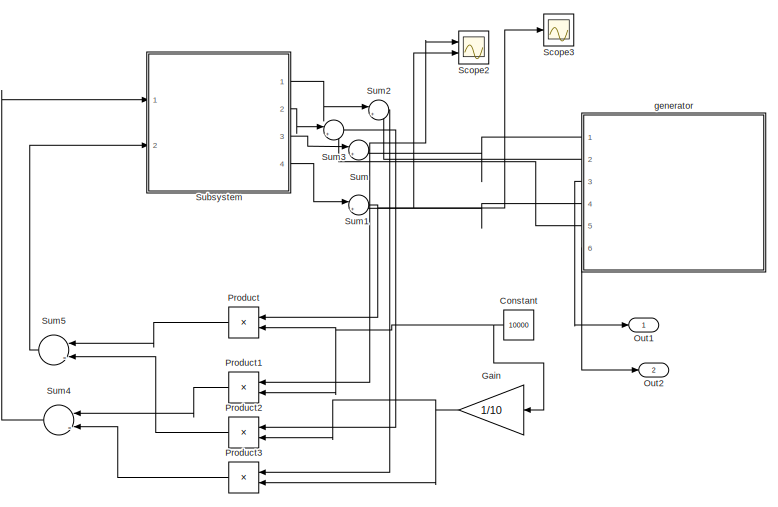
[diagram: root canvas - part 1/3, top left region]
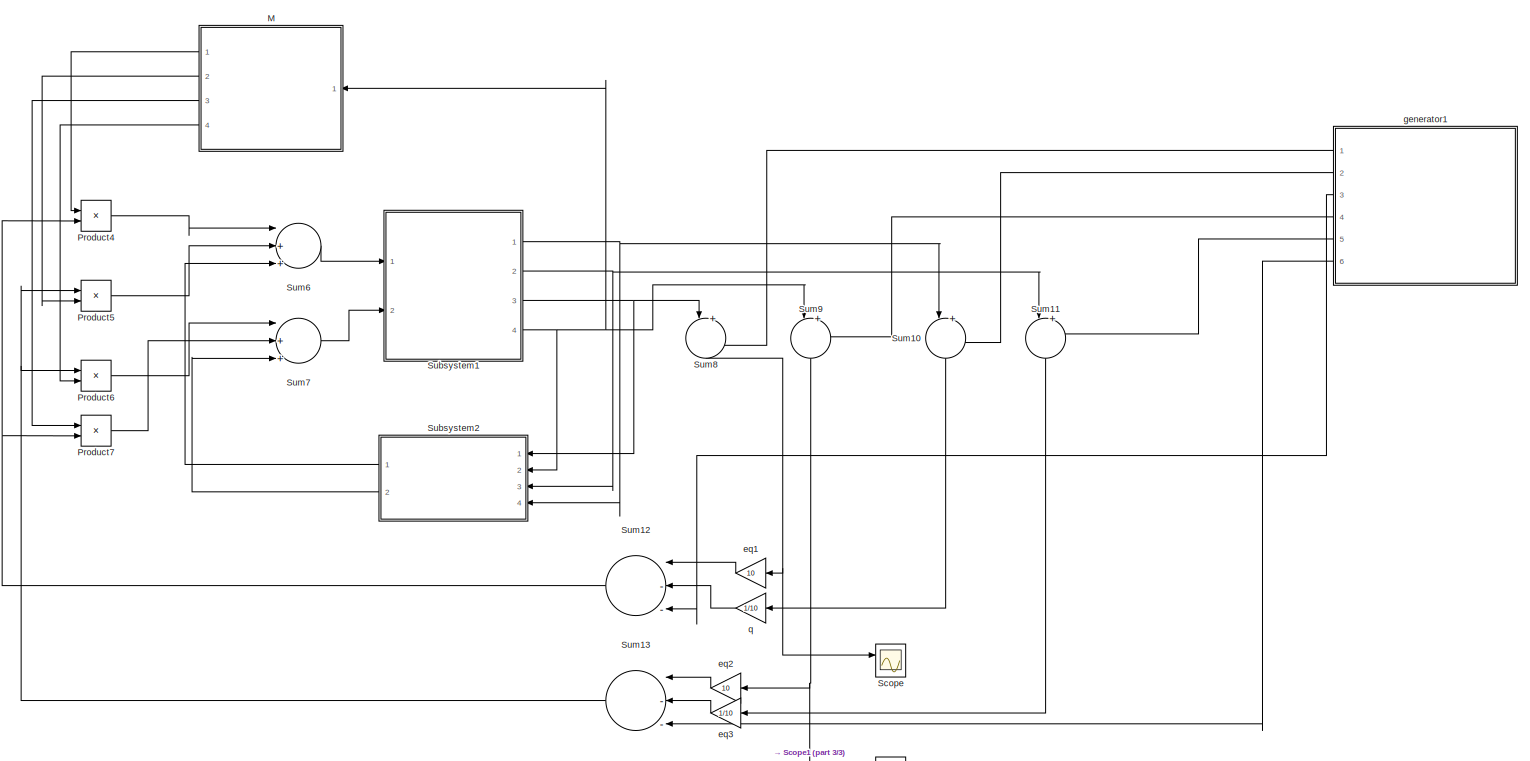
[diagram: root canvas - part 2/3, right side, full height]
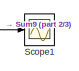
[diagram: root canvas - part 3/3, bottom right region]
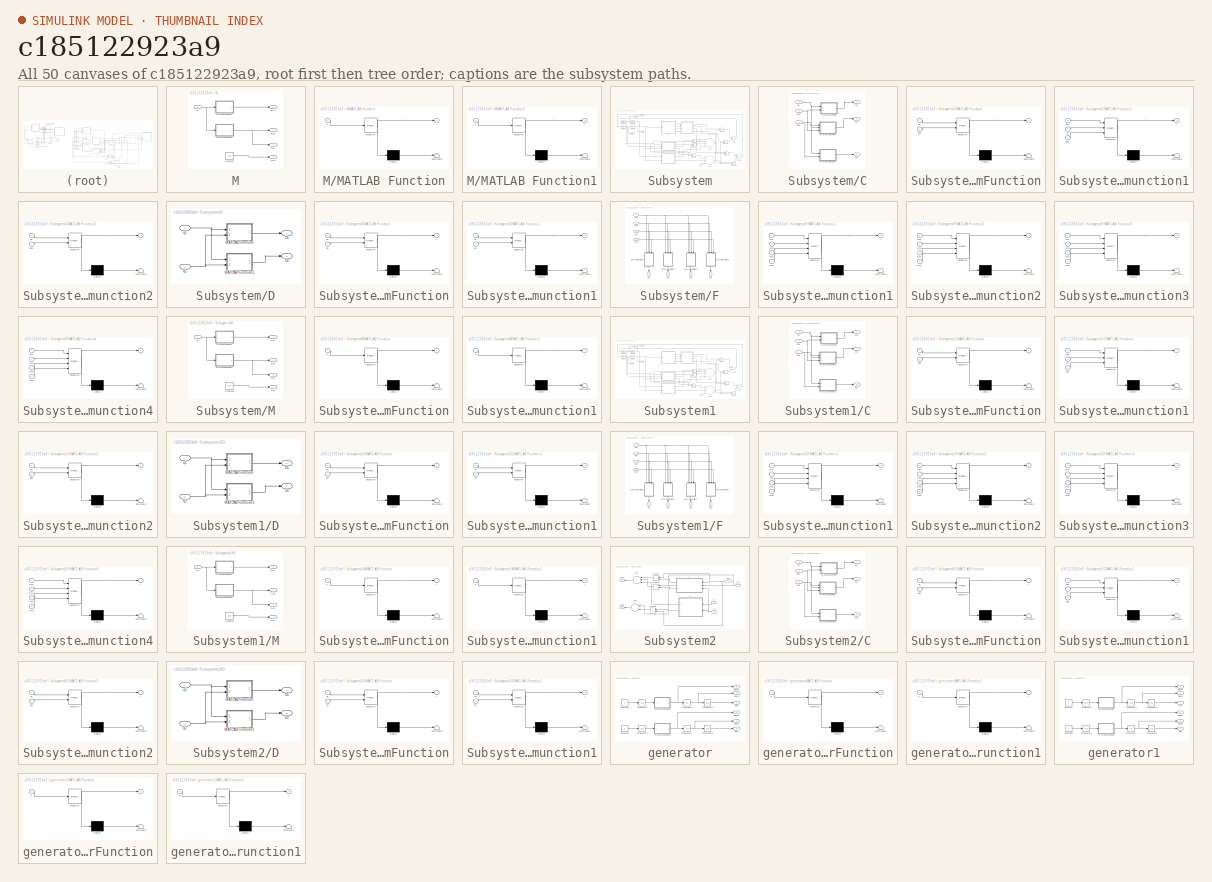
[diagram: thumbnail index - all 50 canvases of the model, root first then tree order]
MODEL slx_c185122923a9
KIND model
CONFIG AbsTol = auto
CONFIG FixedStep = auto
CONFIG MaxStep = auto
CONFIG MinStep = auto
CONFIG RelTol = 1e-10
CONFIG SampleTimeConstraint = Unconstrained
CONFIG Solver = ode23
CONFIG SolverMode = Auto
CONFIG SolverName = ode23
CONFIG StartTime = 0.0
CONFIG StopTime = 1000
BLOCK [Constant] Constant
  Value = 10000
BLOCK [Gain] Gain
  Gain = 1/10
  OutDataTypeStr = Inherit: Inherit via internal rule
  ParamDataTypeStr = Inherit: Inherit via internal rule
  SaturateOnIntegerOverflow = off
BLOCK [SubSystem] M
  Ports = [1, 4]
  RequestExecContextInheritance = off
  Variant = off
BLOCK [Constant] M/Constant
  Value = 0.24
BLOCK [Outport] M/M11
  IconDisplay = Port number
BLOCK [Outport] M/M12
  IconDisplay = Port number
  Port = 2
BLOCK [Outport] M/M21
  IconDisplay = Port number
  Port = 3
BLOCK [Outport] M/M22
  IconDisplay = Port number
  Port = 4
BLOCK [SubSystem] M/MATLAB Function
  ErrorFcn = Stateflow.Translate.translate
  PermitHierarchicalResolution = ExplicitOnly
  Ports = [1, 1]
  RequestExecContextInheritance = off
  SFBlockType = MATLAB Function
  TreatAsAtomicUnit = on
  Variant = off
BLOCK [Demux] M/MATLAB Function/ Demux 
  Outputs = 1
  Ports = [1, 1]
BLOCK [S-Function] M/MATLAB Function/ SFunction 
  EnableBusSupport = on
  FunctionName = sf_sfun
  PortCounts = [1 2]
  Ports = [1, 2]
  SFunctionDeploymentMode = off
  Tag = Stateflow S-Function l1 27
BLOCK [Terminator] M/MATLAB Function/ Terminator 
BLOCK [Inport] M/MATLAB Function/u
  IconDisplay = Port number
BLOCK [Outport] M/MATLAB Function/y
  IconDisplay = Port number
BLOCK [SubSystem] M/MATLAB Function1
  ErrorFcn = Stateflow.Translate.translate
  PermitHierarchicalResolution = ExplicitOnly
  Ports = [1, 1]
  RequestExecContextInheritance = off
  SFBlockType = MATLAB Function
  TreatAsAtomicUnit = on
  Variant = off
BLOCK [Demux] M/MATLAB Function1/ Demux 
  Outputs = 1
  Ports = [1, 1]
BLOCK [S-Function] M/MATLAB Function1/ SFunction 
  EnableBusSupport = on
  FunctionName = sf_sfun
  PortCounts = [1 2]
  Ports = [1, 2]
  SFunctionDeploymentMode = off
  Tag = Stateflow S-Function l1 28
BLOCK [Terminator] M/MATLAB Function1/ Terminator 
BLOCK [Inport] M/MATLAB Function1/u
  IconDisplay = Port number
BLOCK [Outport] M/MATLAB Function1/y
  IconDisplay = Port number
BLOCK [Inport] M/q2
  IconDisplay = Port number
BLOCK [Outport] Out1
  IconDisplay = Port number
BLOCK [Outport] Out2
  IconDisplay = Port number
  Port = 2
BLOCK [Product] Product
  InputSameDT = off
  OutDataTypeStr = Inherit: Inherit via internal rule
  Ports = [2, 1]
  RndMeth = Floor
  SaturateOnIntegerOverflow = off
BLOCK [Product] Product1
  InputSameDT = off
  OutDataTypeStr = Inherit: Inherit via internal rule
  Ports = [2, 1]
  RndMeth = Floor
  SaturateOnIntegerOverflow = off
BLOCK [Product] Product2
  InputSameDT = off
  OutDataTypeStr = Inherit: Inherit via internal rule
  Ports = [2, 1]
  RndMeth = Floor
  SaturateOnIntegerOverflow = off
BLOCK [Product] Product3
  InputSameDT = off
  OutDataTypeStr = Inherit: Inherit via internal rule
  Ports = [2, 1]
  RndMeth = Floor
  SaturateOnIntegerOverflow = off
BLOCK [Product] Product4
  InputSameDT = off
  OutDataTypeStr = Inherit: Inherit via internal rule
  Ports = [2, 1]
  RndMeth = Floor
  SaturateOnIntegerOverflow = off
BLOCK [Product] Product5
  InputSameDT = off
  OutDataTypeStr = Inherit: Inherit via internal rule
  Ports = [2, 1]
  RndMeth = Floor
  SaturateOnIntegerOverflow = off
BLOCK [Product] Product6
  InputSameDT = off
  OutDataTypeStr = Inherit: Inherit via internal rule
  Ports = [2, 1]
  RndMeth = Floor
  SaturateOnIntegerOverflow = off
BLOCK [Product] Product7
  InputSameDT = off
  OutDataTypeStr = Inherit: Inherit via internal rule
  Ports = [2, 1]
  RndMeth = Floor
  SaturateOnIntegerOverflow = off
BLOCK [Scope] Scope
  NumInputPorts = 2
  Ports = [2]
  ScopeSpecificationString = Simulink.scopes.TimeScopeBlockCfg('CurrentConfiguration', extmgr.ConfigurationSet(extmgr.Configuration('Core','General UI',true),extmgr.Configuration('Core','Source UI',true),extmgr.Configuration('Sources','WiredSimulink',true),extmgr.Configuration('Visuals','Time Domain',true,'SerializedDisplays',{struct('MinYLimReal','-0.00000000000014','MaxYLimReal','0.00000000000011','YLabelReal','','MinYLimMa...<+1489ch>
BLOCK [Scope] Scope1
  Ports = [1]
  ScopeSpecificationString = Simulink.scopes.TimeScopeBlockCfg('CurrentConfiguration', extmgr.ConfigurationSet(extmgr.Configuration('Core','General UI',true),extmgr.Configuration('Core','Source UI',true),extmgr.Configuration('Sources','WiredSimulink',true,'DataLoggingVariableName','ScopeData1'),extmgr.Configuration('Visuals','Time Domain',true,'SerializedDisplays',{struct('MinYLimReal','-0.00000000000007','MaxYLimReal','0.000...<+1481ch>
BLOCK [Scope] Scope2
  NumInputPorts = 2
  Ports = [2]
  ScopeSpecificationString = Simulink.scopes.TimeScopeBlockCfg('CurrentConfiguration', extmgr.ConfigurationSet(extmgr.Configuration('Core','General UI',true),extmgr.Configuration('Core','Source UI',true),extmgr.Configuration('Sources','WiredSimulink',true,'DataLoggingVariableName','ScopeData1'),extmgr.Configuration('Visuals','Time Domain',true,'SerializedDisplays',{struct('MinYLimReal','-0.01102','MaxYLimReal','-0.00643','YLa...<+1410ch>
BLOCK [Scope] Scope3
  Ports = [1]
  ScopeSpecificationString = Simulink.scopes.TimeScopeBlockCfg('CurrentConfiguration', extmgr.ConfigurationSet(extmgr.Configuration('Core','General UI',true),extmgr.Configuration('Core','Source UI',true),extmgr.Configuration('Sources','WiredSimulink',true,'DataLoggingVariableName','ScopeData2'),extmgr.Configuration('Visuals','Time Domain',true,'SerializedDisplays',{struct('MinYLimReal','-0.00118','MaxYLimReal','0.00067','YLab...<+1382ch>
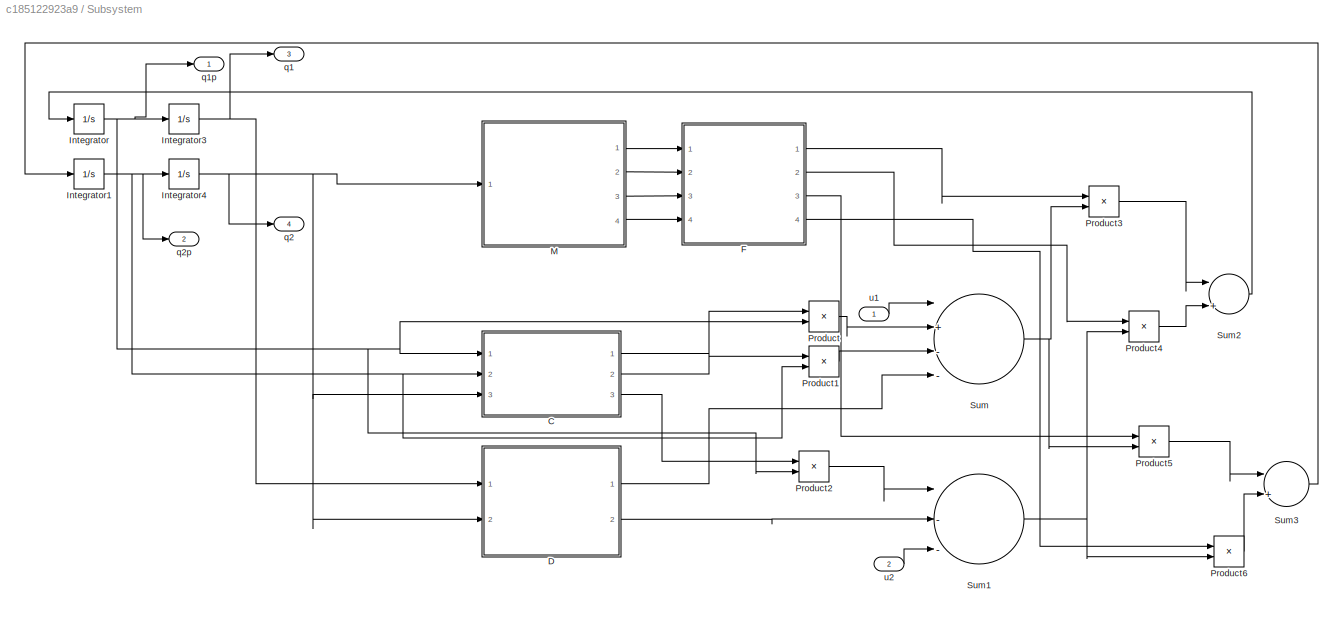
BLOCK [SubSystem] Subsystem
  Ports = [2, 4]
  RequestExecContextInheritance = off
  Variant = off
BLOCK [SubSystem] Subsystem/C
  Ports = [3, 3]
  RequestExecContextInheritance = off
  Variant = off
BLOCK [Outport] Subsystem/C/C11
  IconDisplay = Port number
BLOCK [Outport] Subsystem/C/C12
  IconDisplay = Port number
  Port = 2
BLOCK [Outport] Subsystem/C/C21
  IconDisplay = Port number
  Port = 3
BLOCK [SubSystem] Subsystem/C/MATLAB Function
  ErrorFcn = Stateflow.Translate.translate
  PermitHierarchicalResolution = ExplicitOnly
  Ports = [2, 1]
  RequestExecContextInheritance = off
  SFBlockType = MATLAB Function
  TreatAsAtomicUnit = on
  Variant = off
BLOCK [Demux] Subsystem/C/MATLAB Function/ Demux 
  Outputs = 1
  Ports = [1, 1]
BLOCK [S-Function] Subsystem/C/MATLAB Function/ SFunction 
  EnableBusSupport = on
  FunctionName = sf_sfun
  PortCounts = [2 2]
  Ports = [2, 2]
  SFunctionDeploymentMode = off
  Tag = Stateflow S-Function l1 3
BLOCK [Terminator] Subsystem/C/MATLAB Function/ Terminator 
BLOCK [Inport] Subsystem/C/MATLAB Function/q2
  IconDisplay = Port number
BLOCK [Inport] Subsystem/C/MATLAB Function/qp2
  IconDisplay = Port number
  Port = 2
BLOCK [Outport] Subsystem/C/MATLAB Function/y
  IconDisplay = Port number
BLOCK [SubSystem] Subsystem/C/MATLAB Function1
  ErrorFcn = Stateflow.Translate.translate
  PermitHierarchicalResolution = ExplicitOnly
  Ports = [3, 1]
  RequestExecContextInheritance = off
  SFBlockType = MATLAB Function
  TreatAsAtomicUnit = on
  Variant = off
BLOCK [Demux] Subsystem/C/MATLAB Function1/ Demux 
  Outputs = 1
  Ports = [1, 1]
BLOCK [S-Function] Subsystem/C/MATLAB Function1/ SFunction 
  EnableBusSupport = on
  FunctionName = sf_sfun
  PortCounts = [3 2]
  Ports = [3, 2]
  SFunctionDeploymentMode = off
  Tag = Stateflow S-Function l1 4
BLOCK [Terminator] Subsystem/C/MATLAB Function1/ Terminator 
BLOCK [Inport] Subsystem/C/MATLAB Function1/q2
  IconDisplay = Port number
  Port = 2
BLOCK [Inport] Subsystem/C/MATLAB Function1/qp1
  IconDisplay = Port number
BLOCK [Inport] Subsystem/C/MATLAB Function1/qp2
  IconDisplay = Port number
  Port = 3
BLOCK [Outport] Subsystem/C/MATLAB Function1/y
  IconDisplay = Port number
BLOCK [SubSystem] Subsystem/C/MATLAB Function2
  ErrorFcn = Stateflow.Translate.translate
  PermitHierarchicalResolution = ExplicitOnly
  Ports = [2, 1]
  RequestExecContextInheritance = off
  SFBlockType = MATLAB Function
  TreatAsAtomicUnit = on
  Variant = off
BLOCK [Demux] Subsystem/C/MATLAB Function2/ Demux 
  Outputs = 1
  Ports = [1, 1]
BLOCK [S-Function] Subsystem/C/MATLAB Function2/ SFunction 
  EnableBusSupport = on
  FunctionName = sf_sfun
  PortCounts = [2 2]
  Ports = [2, 2]
  SFunctionDeploymentMode = off
  Tag = Stateflow S-Function l1 5
BLOCK [Terminator] Subsystem/C/MATLAB Function2/ Terminator 
BLOCK [Inport] Subsystem/C/MATLAB Function2/q2
  IconDisplay = Port number
BLOCK [Inport] Subsystem/C/MATLAB Function2/qp1
  IconDisplay = Port number
  Port = 2
BLOCK [Outport] Subsystem/C/MATLAB Function2/y
  IconDisplay = Port number
BLOCK [Inport] Subsystem/C/q2
  IconDisplay = Port number
  Port = 3
BLOCK [Inport] Subsystem/C/qp1
  IconDisplay = Port number
BLOCK [Inport] Subsystem/C/qp2
  IconDisplay = Port number
  Port = 2
BLOCK [SubSystem] Subsystem/D
  Ports = [2, 2]
  RequestExecContextInheritance = off
  Variant = off
BLOCK [Outport] Subsystem/D/D1
  IconDisplay = Port number
BLOCK [Outport] Subsystem/D/D2
  IconDisplay = Port number
  Port = 2
BLOCK [SubSystem] Subsystem/D/MATLAB Function
  ErrorFcn = Stateflow.Translate.translate
  PermitHierarchicalResolution = ExplicitOnly
  Ports = [2, 1]
  RequestExecContextInheritance = off
  SFBlockType = MATLAB Function
  TreatAsAtomicUnit = on
  Variant = off
BLOCK [Demux] Subsystem/D/MATLAB Function/ Demux 
  Outputs = 1
  Ports = [1, 1]
BLOCK [S-Function] Subsystem/D/MATLAB Function/ SFunction 
  EnableBusSupport = on
  FunctionName = sf_sfun
  PortCounts = [2 2]
  Ports = [2, 2]
  SFunctionDeploymentMode = off
  Tag = Stateflow S-Function l1 6
BLOCK [Terminator] Subsystem/D/MATLAB Function/ Terminator 
BLOCK [Inport] Subsystem/D/MATLAB Function/q1
  IconDisplay = Port number
BLOCK [Inport] Subsystem/D/MATLAB Function/q2
  IconDisplay = Port number
  Port = 2
BLOCK [Outport] Subsystem/D/MATLAB Function/y
  IconDisplay = Port number
BLOCK [SubSystem] Subsystem/D/MATLAB Function1
  ErrorFcn = Stateflow.Translate.translate
  PermitHierarchicalResolution = ExplicitOnly
  Ports = [2, 1]
  RequestExecContextInheritance = off
  SFBlockType = MATLAB Function
  TreatAsAtomicUnit = on
  Variant = off
BLOCK [Demux] Subsystem/D/MATLAB Function1/ Demux 
  Outputs = 1
  Ports = [1, 1]
BLOCK [S-Function] Subsystem/D/MATLAB Function1/ SFunction 
  EnableBusSupport = on
  FunctionName = sf_sfun
  PortCounts = [2 2]
  Ports = [2, 2]
  SFunctionDeploymentMode = off
  Tag = Stateflow S-Function l1 7
BLOCK [Terminator] Subsystem/D/MATLAB Function1/ Terminator 
BLOCK [Inport] Subsystem/D/MATLAB Function1/q1
  IconDisplay = Port number
BLOCK [Inport] Subsystem/D/MATLAB Function1/q2
  IconDisplay = Port number
  Port = 2
BLOCK [Outport] Subsystem/D/MATLAB Function1/y
  IconDisplay = Port number
BLOCK [Inport] Subsystem/D/q1
  IconDisplay = Port number
BLOCK [Inport] Subsystem/D/q2
  IconDisplay = Port number
  Port = 2
BLOCK [SubSystem] Subsystem/F
  Ports = [4, 4]
  RequestExecContextInheritance = off
  Variant = off
BLOCK [Outport] Subsystem/F/F11
  IconDisplay = Port number
BLOCK [Outport] Subsystem/F/F12
  IconDisplay = Port number
  Port = 2
BLOCK [Outport] Subsystem/F/F21
  IconDisplay = Port number
  Port = 3
BLOCK [Outport] Subsystem/F/F22
  IconDisplay = Port number
  Port = 4
BLOCK [Inport] Subsystem/F/M11
  IconDisplay = Port number
BLOCK [Inport] Subsystem/F/M12
  IconDisplay = Port number
  Port = 2
BLOCK [Inport] Subsystem/F/M21
  IconDisplay = Port number
  Port = 3
BLOCK [Inport] Subsystem/F/M22
  IconDisplay = Port number
  Port = 4
BLOCK [SubSystem] Subsystem/F/MATLAB Function1
  ErrorFcn = Stateflow.Translate.translate
  PermitHierarchicalResolution = ExplicitOnly
  Ports = [4, 1]
  RequestExecContextInheritance = off
  SFBlockType = MATLAB Function
  TreatAsAtomicUnit = on
  Variant = off
BLOCK [Demux] Subsystem/F/MATLAB Function1/ Demux 
  Outputs = 1
  Ports = [1, 1]
BLOCK [S-Function] Subsystem/F/MATLAB Function1/ SFunction 
  EnableBusSupport = on
  FunctionName = sf_sfun
  PortCounts = [4 2]
  Ports = [4, 2]
  SFunctionDeploymentMode = off
  Tag = Stateflow S-Function l1 9
BLOCK [Terminator] Subsystem/F/MATLAB Function1/ Terminator 
BLOCK [Inport] Subsystem/F/MATLAB Function1/m11
  IconDisplay = Port number
BLOCK [Inport] Subsystem/F/MATLAB Function1/m12
  IconDisplay = Port number
  Port = 2
BLOCK [Inport] Subsystem/F/MATLAB Function1/m21
  IconDisplay = Port number
  Port = 3
BLOCK [Inport] Subsystem/F/MATLAB Function1/m22
  IconDisplay = Port number
  Port = 4
BLOCK [Outport] Subsystem/F/MATLAB Function1/y
  IconDisplay = Port number
BLOCK [SubSystem] Subsystem/F/MATLAB Function2
  ErrorFcn = Stateflow.Translate.translate
  PermitHierarchicalResolution = ExplicitOnly
  Ports = [4, 1]
  RequestExecContextInheritance = off
  SFBlockType = MATLAB Function
  TreatAsAtomicUnit = on
  Variant = off
BLOCK [Demux] Subsystem/F/MATLAB Function2/ Demux 
  Outputs = 1
  Ports = [1, 1]
BLOCK [S-Function] Subsystem/F/MATLAB Function2/ SFunction 
  EnableBusSupport = on
  FunctionName = sf_sfun
  PortCounts = [4 2]
  Ports = [4, 2]
  SFunctionDeploymentMode = off
  Tag = Stateflow S-Function l1 10
BLOCK [Terminator] Subsystem/F/MATLAB Function2/ Terminator 
BLOCK [Inport] Subsystem/F/MATLAB Function2/m11
  IconDisplay = Port number
BLOCK [Inport] Subsystem/F/MATLAB Function2/m12
  IconDisplay = Port number
  Port = 2
BLOCK [Inport] Subsystem/F/MATLAB Function2/m21
  IconDisplay = Port number
  Port = 3
BLOCK [Inport] Subsystem/F/MATLAB Function2/m22
  IconDisplay = Port number
  Port = 4
BLOCK [Outport] Subsystem/F/MATLAB Function2/y
  IconDisplay = Port number
BLOCK [SubSystem] Subsystem/F/MATLAB Function3
  ErrorFcn = Stateflow.Translate.translate
  PermitHierarchicalResolution = ExplicitOnly
  Ports = [4, 1]
  RequestExecContextInheritance = off
  SFBlockType = MATLAB Function
  TreatAsAtomicUnit = on
  Variant = off
BLOCK [Demux] Subsystem/F/MATLAB Function3/ Demux 
  Outputs = 1
  Ports = [1, 1]
BLOCK [S-Function] Subsystem/F/MATLAB Function3/ SFunction 
  EnableBusSupport = on
  FunctionName = sf_sfun
  PortCounts = [4 2]
  Ports = [4, 2]
  SFunctionDeploymentMode = off
  Tag = Stateflow S-Function l1 11
BLOCK [Terminator] Subsystem/F/MATLAB Function3/ Terminator 
BLOCK [Inport] Subsystem/F/MATLAB Function3/m11
  IconDisplay = Port number
BLOCK [Inport] Subsystem/F/MATLAB Function3/m12
  IconDisplay = Port number
  Port = 2
BLOCK [Inport] Subsystem/F/MATLAB Function3/m21
  IconDisplay = Port number
  Port = 3
BLOCK [Inport] Subsystem/F/MATLAB Function3/m22
  IconDisplay = Port number
  Port = 4
BLOCK [Outport] Subsystem/F/MATLAB Function3/y
  IconDisplay = Port number
BLOCK [SubSystem] Subsystem/F/MATLAB Function4
  ErrorFcn = Stateflow.Translate.translate
  PermitHierarchicalResolution = ExplicitOnly
  Ports = [4, 1]
  RequestExecContextInheritance = off
  SFBlockType = MATLAB Function
  TreatAsAtomicUnit = on
  Variant = off
BLOCK [Demux] Subsystem/F/MATLAB Function4/ Demux 
  Outputs = 1
  Ports = [1, 1]
BLOCK [S-Function] Subsystem/F/MATLAB Function4/ SFunction 
  EnableBusSupport = on
  FunctionName = sf_sfun
  PortCounts = [4 2]
  Ports = [4, 2]
  SFunctionDeploymentMode = off
  Tag = Stateflow S-Function l1 12
BLOCK [Terminator] Subsystem/F/MATLAB Function4/ Terminator 
BLOCK [Inport] Subsystem/F/MATLAB Function4/m11
  IconDisplay = Port number
BLOCK [Inport] Subsystem/F/MATLAB Function4/m12
  IconDisplay = Port number
  Port = 2
BLOCK [Inport] Subsystem/F/MATLAB Function4/m21
  IconDisplay = Port number
  Port = 3
BLOCK [Inport] Subsystem/F/MATLAB Function4/m22
  IconDisplay = Port number
  Port = 4
BLOCK [Outport] Subsystem/F/MATLAB Function4/y
  IconDisplay = Port number
BLOCK [Integrator] Subsystem/Integrator
  Ports = [1, 1]
BLOCK [Integrator] Subsystem/Integrator1
  Ports = [1, 1]
BLOCK [Integrator] Subsystem/Integrator3
  Ports = [1, 1]
BLOCK [Integrator] Subsystem/Integrator4
  Ports = [1, 1]
BLOCK [SubSystem] Subsystem/M
  Ports = [1, 4]
  RequestExecContextInheritance = off
  Variant = off
BLOCK [Constant] Subsystem/M/Constant
  Value = 0.24
BLOCK [Outport] Subsystem/M/M11
  IconDisplay = Port number
BLOCK [Outport] Subsystem/M/M12
  IconDisplay = Port number
  Port = 2
BLOCK [Outport] Subsystem/M/M21
  IconDisplay = Port number
  Port = 3
BLOCK [Outport] Subsystem/M/M22
  IconDisplay = Port number
  Port = 4
BLOCK [SubSystem] Subsystem/M/MATLAB Function
  ErrorFcn = Stateflow.Translate.translate
  PermitHierarchicalResolution = ExplicitOnly
  Ports = [1, 1]
  RequestExecContextInheritance = off
  SFBlockType = MATLAB Function
  TreatAsAtomicUnit = on
  Variant = off
BLOCK [Demux] Subsystem/M/MATLAB Function/ Demux 
  Outputs = 1
  Ports = [1, 1]
BLOCK [S-Function] Subsystem/M/MATLAB Function/ SFunction 
  EnableBusSupport = on
  FunctionName = sf_sfun
  PortCounts = [1 2]
  Ports = [1, 2]
  SFunctionDeploymentMode = off
  Tag = Stateflow S-Function l1 2
BLOCK [Terminator] Subsystem/M/MATLAB Function/ Terminator 
BLOCK [Inport] Subsystem/M/MATLAB Function/u
  IconDisplay = Port number
BLOCK [Outport] Subsystem/M/MATLAB Function/y
  IconDisplay = Port number
BLOCK [SubSystem] Subsystem/M/MATLAB Function1
  ErrorFcn = Stateflow.Translate.translate
  PermitHierarchicalResolution = ExplicitOnly
  Ports = [1, 1]
  RequestExecContextInheritance = off
  SFBlockType = MATLAB Function
  TreatAsAtomicUnit = on
  Variant = off
BLOCK [Demux] Subsystem/M/MATLAB Function1/ Demux 
  Outputs = 1
  Ports = [1, 1]
BLOCK [S-Function] Subsystem/M/MATLAB Function1/ SFunction 
  EnableBusSupport = on
  FunctionName = sf_sfun
  PortCounts = [1 2]
  Ports = [1, 2]
  SFunctionDeploymentMode = off
  Tag = Stateflow S-Function l1 1
BLOCK [Terminator] Subsystem/M/MATLAB Function1/ Terminator 
BLOCK [Inport] Subsystem/M/MATLAB Function1/u
  IconDisplay = Port number
BLOCK [Outport] Subsystem/M/MATLAB Function1/y
  IconDisplay = Port number
BLOCK [Inport] Subsystem/M/q2
  IconDisplay = Port number
BLOCK [Product] Subsystem/Product
  InputSameDT = off
  OutDataTypeStr = Inherit: Inherit via internal rule
  Ports = [2, 1]
  RndMeth = Floor
  SaturateOnIntegerOverflow = off
BLOCK [Product] Subsystem/Product1
  InputSameDT = off
  OutDataTypeStr = Inherit: Inherit via internal rule
  Ports = [2, 1]
  RndMeth = Floor
  SaturateOnIntegerOverflow = off
BLOCK [Product] Subsystem/Product2
  InputSameDT = off
  OutDataTypeStr = Inherit: Inherit via internal rule
  Ports = [2, 1]
  RndMeth = Floor
  SaturateOnIntegerOverflow = off
BLOCK [Product] Subsystem/Product3
  InputSameDT = off
  OutDataTypeStr = Inherit: Inherit via internal rule
  Ports = [2, 1]
  RndMeth = Floor
  SaturateOnIntegerOverflow = off
BLOCK [Product] Subsystem/Product4
  InputSameDT = off
  OutDataTypeStr = Inherit: Inherit via internal rule
  Ports = [2, 1]
  RndMeth = Floor
  SaturateOnIntegerOverflow = off
BLOCK [Product] Subsystem/Product5
  InputSameDT = off
  OutDataTypeStr = Inherit: Inherit via internal rule
  Ports = [2, 1]
  RndMeth = Floor
  SaturateOnIntegerOverflow = off
BLOCK [Product] Subsystem/Product6
  InputSameDT = off
  OutDataTypeStr = Inherit: Inherit via internal rule
  Ports = [2, 1]
  RndMeth = Floor
  SaturateOnIntegerOverflow = off
BLOCK [Sum] Subsystem/Sum
  InputSameDT = off
  Inputs = |+---
  OutDataTypeStr = Inherit: Inherit via internal rule
  Ports = [4, 1]
  SaturateOnIntegerOverflow = off
BLOCK [Sum] Subsystem/Sum1
  InputSameDT = off
  Inputs = |--+
  OutDataTypeStr = Inherit: Inherit via internal rule
  Ports = [3, 1]
  SaturateOnIntegerOverflow = off
BLOCK [Sum] Subsystem/Sum2
  InputSameDT = off
  Inputs = |++
  OutDataTypeStr = Inherit: Inherit via internal rule
  Ports = [2, 1]
  SaturateOnIntegerOverflow = off
BLOCK [Sum] Subsystem/Sum3
  InputSameDT = off
  Inputs = |++
  OutDataTypeStr = Inherit: Inherit via internal rule
  Ports = [2, 1]
  SaturateOnIntegerOverflow = off
BLOCK [Outport] Subsystem/q1
  IconDisplay = Port number
  Port = 3
BLOCK [Outport] Subsystem/q1p
  IconDisplay = Port number
BLOCK [Outport] Subsystem/q2
  IconDisplay = Port number
  Port = 4
BLOCK [Outport] Subsystem/q2p
  IconDisplay = Port number
  Port = 2
BLOCK [Inport] Subsystem/u1
  IconDisplay = Port number
BLOCK [Inport] Subsystem/u2
  IconDisplay = Port number
  Port = 2
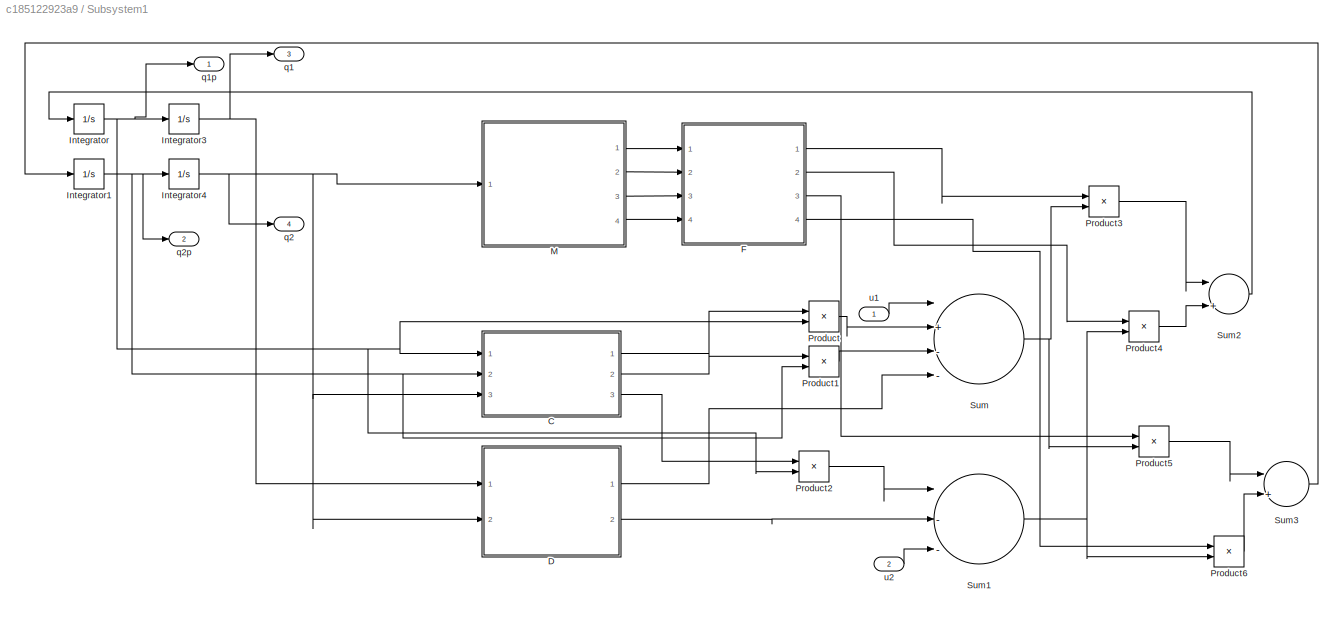
BLOCK [SubSystem] Subsystem1
  Ports = [2, 4]
  RequestExecContextInheritance = off
  Variant = off
BLOCK [SubSystem] Subsystem1/C
  Ports = [3, 3]
  RequestExecContextInheritance = off
  Variant = off
BLOCK [Outport] Subsystem1/C/C11
  IconDisplay = Port number
BLOCK [Outport] Subsystem1/C/C12
  IconDisplay = Port number
  Port = 2
BLOCK [Outport] Subsystem1/C/C21
  IconDisplay = Port number
  Port = 3
BLOCK [SubSystem] Subsystem1/C/MATLAB Function
  ErrorFcn = Stateflow.Translate.translate
  PermitHierarchicalResolution = ExplicitOnly
  Ports = [2, 1]
  RequestExecContextInheritance = off
  SFBlockType = MATLAB Function
  TreatAsAtomicUnit = on
  Variant = off
BLOCK [Demux] Subsystem1/C/MATLAB Function/ Demux 
  Outputs = 1
  Ports = [1, 1]
BLOCK [S-Function] Subsystem1/C/MATLAB Function/ SFunction 
  EnableBusSupport = on
  FunctionName = sf_sfun
  PortCounts = [2 2]
  Ports = [2, 2]
  SFunctionDeploymentMode = off
  Tag = Stateflow S-Function l1 14
BLOCK [Terminator] Subsystem1/C/MATLAB Function/ Terminator 
BLOCK [Inport] Subsystem1/C/MATLAB Function/q2
  IconDisplay = Port number
BLOCK [Inport] Subsystem1/C/MATLAB Function/qp2
  IconDisplay = Port number
  Port = 2
BLOCK [Outport] Subsystem1/C/MATLAB Function/y
  IconDisplay = Port number
BLOCK [SubSystem] Subsystem1/C/MATLAB Function1
  ErrorFcn = Stateflow.Translate.translate
  PermitHierarchicalResolution = ExplicitOnly
  Ports = [3, 1]
  RequestExecContextInheritance = off
  SFBlockType = MATLAB Function
  TreatAsAtomicUnit = on
  Variant = off
BLOCK [Demux] Subsystem1/C/MATLAB Function1/ Demux 
  Outputs = 1
  Ports = [1, 1]
BLOCK [S-Function] Subsystem1/C/MATLAB Function1/ SFunction 
  EnableBusSupport = on
  FunctionName = sf_sfun
  PortCounts = [3 2]
  Ports = [3, 2]
  SFunctionDeploymentMode = off
  Tag = Stateflow S-Function l1 15
BLOCK [Terminator] Subsystem1/C/MATLAB Function1/ Terminator 
BLOCK [Inport] Subsystem1/C/MATLAB Function1/q2
  IconDisplay = Port number
  Port = 2
BLOCK [Inport] Subsystem1/C/MATLAB Function1/qp1
  IconDisplay = Port number
BLOCK [Inport] Subsystem1/C/MATLAB Function1/qp2
  IconDisplay = Port number
  Port = 3
BLOCK [Outport] Subsystem1/C/MATLAB Function1/y
  IconDisplay = Port number
BLOCK [SubSystem] Subsystem1/C/MATLAB Function2
  ErrorFcn = Stateflow.Translate.translate
  PermitHierarchicalResolution = ExplicitOnly
  Ports = [2, 1]
  RequestExecContextInheritance = off
  SFBlockType = MATLAB Function
  TreatAsAtomicUnit = on
  Variant = off
BLOCK [Demux] Subsystem1/C/MATLAB Function2/ Demux 
  Outputs = 1
  Ports = [1, 1]
BLOCK [S-Function] Subsystem1/C/MATLAB Function2/ SFunction 
  EnableBusSupport = on
  FunctionName = sf_sfun
  PortCounts = [2 2]
  Ports = [2, 2]
  SFunctionDeploymentMode = off
  Tag = Stateflow S-Function l1 16
BLOCK [Terminator] Subsystem1/C/MATLAB Function2/ Terminator 
BLOCK [Inport] Subsystem1/C/MATLAB Function2/q2
  IconDisplay = Port number
BLOCK [Inport] Subsystem1/C/MATLAB Function2/qp1
  IconDisplay = Port number
  Port = 2
BLOCK [Outport] Subsystem1/C/MATLAB Function2/y
  IconDisplay = Port number
BLOCK [Inport] Subsystem1/C/q2
  IconDisplay = Port number
  Port = 3
BLOCK [Inport] Subsystem1/C/qp1
  IconDisplay = Port number
BLOCK [Inport] Subsystem1/C/qp2
  IconDisplay = Port number
  Port = 2
BLOCK [SubSystem] Subsystem1/D
  Ports = [2, 2]
  RequestExecContextInheritance = off
  Variant = off
BLOCK [Outport] Subsystem1/D/D1
  IconDisplay = Port number
BLOCK [Outport] Subsystem1/D/D2
  IconDisplay = Port number
  Port = 2
BLOCK [SubSystem] Subsystem1/D/MATLAB Function
  ErrorFcn = Stateflow.Translate.translate
  PermitHierarchicalResolution = ExplicitOnly
  Ports = [2, 1]
  RequestExecContextInheritance = off
  SFBlockType = MATLAB Function
  TreatAsAtomicUnit = on
  Variant = off
BLOCK [Demux] Subsystem1/D/MATLAB Function/ Demux 
  Outputs = 1
  Ports = [1, 1]
BLOCK [S-Function] Subsystem1/D/MATLAB Function/ SFunction 
  EnableBusSupport = on
  FunctionName = sf_sfun
  PortCounts = [2 2]
  Ports = [2, 2]
  SFunctionDeploymentMode = off
  Tag = Stateflow S-Function l1 17
BLOCK [Terminator] Subsystem1/D/MATLAB Function/ Terminator 
BLOCK [Inport] Subsystem1/D/MATLAB Function/q1
  IconDisplay = Port number
BLOCK [Inport] Subsystem1/D/MATLAB Function/q2
  IconDisplay = Port number
  Port = 2
BLOCK [Outport] Subsystem1/D/MATLAB Function/y
  IconDisplay = Port number
BLOCK [SubSystem] Subsystem1/D/MATLAB Function1
  ErrorFcn = Stateflow.Translate.translate
  PermitHierarchicalResolution = ExplicitOnly
  Ports = [2, 1]
  RequestExecContextInheritance = off
  SFBlockType = MATLAB Function
  TreatAsAtomicUnit = on
  Variant = off
BLOCK [Demux] Subsystem1/D/MATLAB Function1/ Demux 
  Outputs = 1
  Ports = [1, 1]
BLOCK [S-Function] Subsystem1/D/MATLAB Function1/ SFunction 
  EnableBusSupport = on
  FunctionName = sf_sfun
  PortCounts = [2 2]
  Ports = [2, 2]
  SFunctionDeploymentMode = off
  Tag = Stateflow S-Function l1 18
BLOCK [Terminator] Subsystem1/D/MATLAB Function1/ Terminator 
BLOCK [Inport] Subsystem1/D/MATLAB Function1/q1
  IconDisplay = Port number
BLOCK [Inport] Subsystem1/D/MATLAB Function1/q2
  IconDisplay = Port number
  Port = 2
BLOCK [Outport] Subsystem1/D/MATLAB Function1/y
  IconDisplay = Port number
BLOCK [Inport] Subsystem1/D/q1
  IconDisplay = Port number
BLOCK [Inport] Subsystem1/D/q2
  IconDisplay = Port number
  Port = 2
BLOCK [SubSystem] Subsystem1/F
  Ports = [4, 4]
  RequestExecContextInheritance = off
  Variant = off
BLOCK [Outport] Subsystem1/F/F11
  IconDisplay = Port number
BLOCK [Outport] Subsystem1/F/F12
  IconDisplay = Port number
  Port = 2
BLOCK [Outport] Subsystem1/F/F21
  IconDisplay = Port number
  Port = 3
BLOCK [Outport] Subsystem1/F/F22
  IconDisplay = Port number
  Port = 4
BLOCK [Inport] Subsystem1/F/M11
  IconDisplay = Port number
BLOCK [Inport] Subsystem1/F/M12
  IconDisplay = Port number
  Port = 2
BLOCK [Inport] Subsystem1/F/M21
  IconDisplay = Port number
  Port = 3
BLOCK [Inport] Subsystem1/F/M22
  IconDisplay = Port number
  Port = 4
BLOCK [SubSystem] Subsystem1/F/MATLAB Function1
  ErrorFcn = Stateflow.Translate.translate
  PermitHierarchicalResolution = ExplicitOnly
  Ports = [4, 1]
  RequestExecContextInheritance = off
  SFBlockType = MATLAB Function
  TreatAsAtomicUnit = on
  Variant = off
BLOCK [Demux] Subsystem1/F/MATLAB Function1/ Demux 
  Outputs = 1
  Ports = [1, 1]
BLOCK [S-Function] Subsystem1/F/MATLAB Function1/ SFunction 
  EnableBusSupport = on
  FunctionName = sf_sfun
  PortCounts = [4 2]
  Ports = [4, 2]
  SFunctionDeploymentMode = off
  Tag = Stateflow S-Function l1 19
BLOCK [Terminator] Subsystem1/F/MATLAB Function1/ Terminator 
BLOCK [Inport] Subsystem1/F/MATLAB Function1/m11
  IconDisplay = Port number
BLOCK [Inport] Subsystem1/F/MATLAB Function1/m12
  IconDisplay = Port number
  Port = 2
BLOCK [Inport] Subsystem1/F/MATLAB Function1/m21
  IconDisplay = Port number
  Port = 3
BLOCK [Inport] Subsystem1/F/MATLAB Function1/m22
  IconDisplay = Port number
  Port = 4
BLOCK [Outport] Subsystem1/F/MATLAB Function1/y
  IconDisplay = Port number
BLOCK [SubSystem] Subsystem1/F/MATLAB Function2
  ErrorFcn = Stateflow.Translate.translate
  PermitHierarchicalResolution = ExplicitOnly
  Ports = [4, 1]
  RequestExecContextInheritance = off
  SFBlockType = MATLAB Function
  TreatAsAtomicUnit = on
  Variant = off
BLOCK [Demux] Subsystem1/F/MATLAB Function2/ Demux 
  Outputs = 1
  Ports = [1, 1]
BLOCK [S-Function] Subsystem1/F/MATLAB Function2/ SFunction 
  EnableBusSupport = on
  FunctionName = sf_sfun
  PortCounts = [4 2]
  Ports = [4, 2]
  SFunctionDeploymentMode = off
  Tag = Stateflow S-Function l1 20
BLOCK [Terminator] Subsystem1/F/MATLAB Function2/ Terminator 
BLOCK [Inport] Subsystem1/F/MATLAB Function2/m11
  IconDisplay = Port number
BLOCK [Inport] Subsystem1/F/MATLAB Function2/m12
  IconDisplay = Port number
  Port = 2
BLOCK [Inport] Subsystem1/F/MATLAB Function2/m21
  IconDisplay = Port number
  Port = 3
BLOCK [Inport] Subsystem1/F/MATLAB Function2/m22
  IconDisplay = Port number
  Port = 4
BLOCK [Outport] Subsystem1/F/MATLAB Function2/y
  IconDisplay = Port number
BLOCK [SubSystem] Subsystem1/F/MATLAB Function3
  ErrorFcn = Stateflow.Translate.translate
  PermitHierarchicalResolution = ExplicitOnly
  Ports = [4, 1]
  RequestExecContextInheritance = off
  SFBlockType = MATLAB Function
  TreatAsAtomicUnit = on
  Variant = off
BLOCK [Demux] Subsystem1/F/MATLAB Function3/ Demux 
  Outputs = 1
  Ports = [1, 1]
BLOCK [S-Function] Subsystem1/F/MATLAB Function3/ SFunction 
  EnableBusSupport = on
  FunctionName = sf_sfun
  PortCounts = [4 2]
  Ports = [4, 2]
  SFunctionDeploymentMode = off
  Tag = Stateflow S-Function l1 21
BLOCK [Terminator] Subsystem1/F/MATLAB Function3/ Terminator 
BLOCK [Inport] Subsystem1/F/MATLAB Function3/m11
  IconDisplay = Port number
BLOCK [Inport] Subsystem1/F/MATLAB Function3/m12
  IconDisplay = Port number
  Port = 2
BLOCK [Inport] Subsystem1/F/MATLAB Function3/m21
  IconDisplay = Port number
  Port = 3
BLOCK [Inport] Subsystem1/F/MATLAB Function3/m22
  IconDisplay = Port number
  Port = 4
BLOCK [Outport] Subsystem1/F/MATLAB Function3/y
  IconDisplay = Port number
BLOCK [SubSystem] Subsystem1/F/MATLAB Function4
  ErrorFcn = Stateflow.Translate.translate
  PermitHierarchicalResolution = ExplicitOnly
  Ports = [4, 1]
  RequestExecContextInheritance = off
  SFBlockType = MATLAB Function
  TreatAsAtomicUnit = on
  Variant = off
BLOCK [Demux] Subsystem1/F/MATLAB Function4/ Demux 
  Outputs = 1
  Ports = [1, 1]
BLOCK [S-Function] Subsystem1/F/MATLAB Function4/ SFunction 
  EnableBusSupport = on
  FunctionName = sf_sfun
  PortCounts = [4 2]
  Ports = [4, 2]
  SFunctionDeploymentMode = off
  Tag = Stateflow S-Function l1 22
BLOCK [Terminator] Subsystem1/F/MATLAB Function4/ Terminator 
BLOCK [Inport] Subsystem1/F/MATLAB Function4/m11
  IconDisplay = Port number
BLOCK [Inport] Subsystem1/F/MATLAB Function4/m12
  IconDisplay = Port number
  Port = 2
BLOCK [Inport] Subsystem1/F/MATLAB Function4/m21
  IconDisplay = Port number
  Port = 3
BLOCK [Inport] Subsystem1/F/MATLAB Function4/m22
  IconDisplay = Port number
  Port = 4
BLOCK [Outport] Subsystem1/F/MATLAB Function4/y
  IconDisplay = Port number
BLOCK [Integrator] Subsystem1/Integrator
  Ports = [1, 1]
BLOCK [Integrator] Subsystem1/Integrator1
  Ports = [1, 1]
BLOCK [Integrator] Subsystem1/Integrator3
  Ports = [1, 1]
BLOCK [Integrator] Subsystem1/Integrator4
  Ports = [1, 1]
BLOCK [SubSystem] Subsystem1/M
  Ports = [1, 4]
  RequestExecContextInheritance = off
  Variant = off
BLOCK [Constant] Subsystem1/M/Constant
  Value = 0.24
BLOCK [Outport] Subsystem1/M/M11
  IconDisplay = Port number
BLOCK [Outport] Subsystem1/M/M12
  IconDisplay = Port number
  Port = 2
BLOCK [Outport] Subsystem1/M/M21
  IconDisplay = Port number
  Port = 3
BLOCK [Outport] Subsystem1/M/M22
  IconDisplay = Port number
  Port = 4
BLOCK [SubSystem] Subsystem1/M/MATLAB Function
  ErrorFcn = Stateflow.Translate.translate
  PermitHierarchicalResolution = ExplicitOnly
  Ports = [1, 1]
  RequestExecContextInheritance = off
  SFBlockType = MATLAB Function
  TreatAsAtomicUnit = on
  Variant = off
BLOCK [Demux] Subsystem1/M/MATLAB Function/ Demux 
  Outputs = 1
  Ports = [1, 1]
BLOCK [S-Function] Subsystem1/M/MATLAB Function/ SFunction 
  EnableBusSupport = on
  FunctionName = sf_sfun
  PortCounts = [1 2]
  Ports = [1, 2]
  SFunctionDeploymentMode = off
  Tag = Stateflow S-Function l1 23
BLOCK [Terminator] Subsystem1/M/MATLAB Function/ Terminator 
BLOCK [Inport] Subsystem1/M/MATLAB Function/u
  IconDisplay = Port number
BLOCK [Outport] Subsystem1/M/MATLAB Function/y
  IconDisplay = Port number
BLOCK [SubSystem] Subsystem1/M/MATLAB Function1
  ErrorFcn = Stateflow.Translate.translate
  PermitHierarchicalResolution = ExplicitOnly
  Ports = [1, 1]
  RequestExecContextInheritance = off
  SFBlockType = MATLAB Function
  TreatAsAtomicUnit = on
  Variant = off
BLOCK [Demux] Subsystem1/M/MATLAB Function1/ Demux 
  Outputs = 1
  Ports = [1, 1]
BLOCK [S-Function] Subsystem1/M/MATLAB Function1/ SFunction 
  EnableBusSupport = on
  FunctionName = sf_sfun
  PortCounts = [1 2]
  Ports = [1, 2]
  SFunctionDeploymentMode = off
  Tag = Stateflow S-Function l1 24
BLOCK [Terminator] Subsystem1/M/MATLAB Function1/ Terminator 
BLOCK [Inport] Subsystem1/M/MATLAB Function1/u
  IconDisplay = Port number
BLOCK [Outport] Subsystem1/M/MATLAB Function1/y
  IconDisplay = Port number
BLOCK [Inport] Subsystem1/M/q2
  IconDisplay = Port number
BLOCK [Product] Subsystem1/Product
  InputSameDT = off
  OutDataTypeStr = Inherit: Inherit via internal rule
  Ports = [2, 1]
  RndMeth = Floor
  SaturateOnIntegerOverflow = off
BLOCK [Product] Subsystem1/Product1
  InputSameDT = off
  OutDataTypeStr = Inherit: Inherit via internal rule
  Ports = [2, 1]
  RndMeth = Floor
  SaturateOnIntegerOverflow = off
BLOCK [Product] Subsystem1/Product2
  InputSameDT = off
  OutDataTypeStr = Inherit: Inherit via internal rule
  Ports = [2, 1]
  RndMeth = Floor
  SaturateOnIntegerOverflow = off
BLOCK [Product] Subsystem1/Product3
  InputSameDT = off
  OutDataTypeStr = Inherit: Inherit via internal rule
  Ports = [2, 1]
  RndMeth = Floor
  SaturateOnIntegerOverflow = off
BLOCK [Product] Subsystem1/Product4
  InputSameDT = off
  OutDataTypeStr = Inherit: Inherit via internal rule
  Ports = [2, 1]
  RndMeth = Floor
  SaturateOnIntegerOverflow = off
BLOCK [Product] Subsystem1/Product5
  InputSameDT = off
  OutDataTypeStr = Inherit: Inherit via internal rule
  Ports = [2, 1]
  RndMeth = Floor
  SaturateOnIntegerOverflow = off
BLOCK [Product] Subsystem1/Product6
  InputSameDT = off
  OutDataTypeStr = Inherit: Inherit via internal rule
  Ports = [2, 1]
  RndMeth = Floor
  SaturateOnIntegerOverflow = off
BLOCK [Sum] Subsystem1/Sum
  InputSameDT = off
  Inputs = |+---
  OutDataTypeStr = Inherit: Inherit via internal rule
  Ports = [4, 1]
  SaturateOnIntegerOverflow = off
BLOCK [Sum] Subsystem1/Sum1
  InputSameDT = off
  Inputs = |--+
  OutDataTypeStr = Inherit: Inherit via internal rule
  Ports = [3, 1]
  SaturateOnIntegerOverflow = off
BLOCK [Sum] Subsystem1/Sum2
  InputSameDT = off
  Inputs = |++
  OutDataTypeStr = Inherit: Inherit via internal rule
  Ports = [2, 1]
  SaturateOnIntegerOverflow = off
BLOCK [Sum] Subsystem1/Sum3
  InputSameDT = off
  Inputs = |++
  OutDataTypeStr = Inherit: Inherit via internal rule
  Ports = [2, 1]
  SaturateOnIntegerOverflow = off
BLOCK [Outport] Subsystem1/q1
  IconDisplay = Port number
  Port = 3
BLOCK [Outport] Subsystem1/q1p
  IconDisplay = Port number
BLOCK [Outport] Subsystem1/q2
  IconDisplay = Port number
  Port = 4
BLOCK [Outport] Subsystem1/q2p
  IconDisplay = Port number
  Port = 2
BLOCK [Inport] Subsystem1/u1
  IconDisplay = Port number
BLOCK [Inport] Subsystem1/u2
  IconDisplay = Port number
  Port = 2
BLOCK [SubSystem] Subsystem2
  Ports = [4, 2]
  RequestExecContextInheritance = off
  Variant = off
BLOCK [SubSystem] Subsystem2/C
  Ports = [3, 3]
  RequestExecContextInheritance = off
  Variant = off
BLOCK [Outport] Subsystem2/C/C11
  IconDisplay = Port number
BLOCK [Outport] Subsystem2/C/C12
  IconDisplay = Port number
  Port = 2
BLOCK [Outport] Subsystem2/C/C21
  IconDisplay = Port number
  Port = 3
BLOCK [SubSystem] Subsystem2/C/MATLAB Function
  ErrorFcn = Stateflow.Translate.translate
  PermitHierarchicalResolution = ExplicitOnly
  Ports = [2, 1]
  RequestExecContextInheritance = off
  SFBlockType = MATLAB Function
  TreatAsAtomicUnit = on
  Variant = off
BLOCK [Demux] Subsystem2/C/MATLAB Function/ Demux 
  Outputs = 1
  Ports = [1, 1]
BLOCK [S-Function] Subsystem2/C/MATLAB Function/ SFunction 
  EnableBusSupport = on
  FunctionName = sf_sfun
  PortCounts = [2 2]
  Ports = [2, 2]
  SFunctionDeploymentMode = off
  Tag = Stateflow S-Function l1 29
BLOCK [Terminator] Subsystem2/C/MATLAB Function/ Terminator 
BLOCK [Inport] Subsystem2/C/MATLAB Function/q2
  IconDisplay = Port number
BLOCK [Inport] Subsystem2/C/MATLAB Function/qp2
  IconDisplay = Port number
  Port = 2
BLOCK [Outport] Subsystem2/C/MATLAB Function/y
  IconDisplay = Port number
BLOCK [SubSystem] Subsystem2/C/MATLAB Function1
  ErrorFcn = Stateflow.Translate.translate
  PermitHierarchicalResolution = ExplicitOnly
  Ports = [3, 1]
  RequestExecContextInheritance = off
  SFBlockType = MATLAB Function
  TreatAsAtomicUnit = on
  Variant = off
BLOCK [Demux] Subsystem2/C/MATLAB Function1/ Demux 
  Outputs = 1
  Ports = [1, 1]
BLOCK [S-Function] Subsystem2/C/MATLAB Function1/ SFunction 
  EnableBusSupport = on
  FunctionName = sf_sfun
  PortCounts = [3 2]
  Ports = [3, 2]
  SFunctionDeploymentMode = off
  Tag = Stateflow S-Function l1 30
BLOCK [Terminator] Subsystem2/C/MATLAB Function1/ Terminator 
BLOCK [Inport] Subsystem2/C/MATLAB Function1/q2
  IconDisplay = Port number
  Port = 2
BLOCK [Inport] Subsystem2/C/MATLAB Function1/qp1
  IconDisplay = Port number
BLOCK [Inport] Subsystem2/C/MATLAB Function1/qp2
  IconDisplay = Port number
  Port = 3
BLOCK [Outport] Subsystem2/C/MATLAB Function1/y
  IconDisplay = Port number
BLOCK [SubSystem] Subsystem2/C/MATLAB Function2
  ErrorFcn = Stateflow.Translate.translate
  PermitHierarchicalResolution = ExplicitOnly
  Ports = [2, 1]
  RequestExecContextInheritance = off
  SFBlockType = MATLAB Function
  TreatAsAtomicUnit = on
  Variant = off
BLOCK [Demux] Subsystem2/C/MATLAB Function2/ Demux 
  Outputs = 1
  Ports = [1, 1]
BLOCK [S-Function] Subsystem2/C/MATLAB Function2/ SFunction 
  EnableBusSupport = on
  FunctionName = sf_sfun
  PortCounts = [2 2]
  Ports = [2, 2]
  SFunctionDeploymentMode = off
  Tag = Stateflow S-Function l1 31
BLOCK [Terminator] Subsystem2/C/MATLAB Function2/ Terminator 
BLOCK [Inport] Subsystem2/C/MATLAB Function2/q2
  IconDisplay = Port number
BLOCK [Inport] Subsystem2/C/MATLAB Function2/qp1
  IconDisplay = Port number
  Port = 2
BLOCK [Outport] Subsystem2/C/MATLAB Function2/y
  IconDisplay = Port number
BLOCK [Inport] Subsystem2/C/q2
  IconDisplay = Port number
  Port = 3
BLOCK [Inport] Subsystem2/C/qp1
  IconDisplay = Port number
BLOCK [Inport] Subsystem2/C/qp2
  IconDisplay = Port number
  Port = 2
BLOCK [Outport] Subsystem2/CDq1
  IconDisplay = Port number
BLOCK [Outport] Subsystem2/CDq2
  IconDisplay = Port number
  Port = 2
BLOCK [SubSystem] Subsystem2/D
  Ports = [2, 2]
  RequestExecContextInheritance = off
  Variant = off
BLOCK [Outport] Subsystem2/D/D1
  IconDisplay = Port number
BLOCK [Outport] Subsystem2/D/D2
  IconDisplay = Port number
  Port = 2
BLOCK [SubSystem] Subsystem2/D/MATLAB Function
  ErrorFcn = Stateflow.Translate.translate
  PermitHierarchicalResolution = ExplicitOnly
  Ports = [2, 1]
  RequestExecContextInheritance = off
  SFBlockType = MATLAB Function
  TreatAsAtomicUnit = on
  Variant = off
BLOCK [Demux] Subsystem2/D/MATLAB Function/ Demux 
  Outputs = 1
  Ports = [1, 1]
BLOCK [S-Function] Subsystem2/D/MATLAB Function/ SFunction 
  EnableBusSupport = on
  FunctionName = sf_sfun
  PortCounts = [2 2]
  Ports = [2, 2]
  SFunctionDeploymentMode = off
  Tag = Stateflow S-Function l1 32
BLOCK [Terminator] Subsystem2/D/MATLAB Function/ Terminator 
BLOCK [Inport] Subsystem2/D/MATLAB Function/q1
  IconDisplay = Port number
BLOCK [Inport] Subsystem2/D/MATLAB Function/q2
  IconDisplay = Port number
  Port = 2
BLOCK [Outport] Subsystem2/D/MATLAB Function/y
  IconDisplay = Port number
BLOCK [SubSystem] Subsystem2/D/MATLAB Function1
  ErrorFcn = Stateflow.Translate.translate
  PermitHierarchicalResolution = ExplicitOnly
  Ports = [2, 1]
  RequestExecContextInheritance = off
  SFBlockType = MATLAB Function
  TreatAsAtomicUnit = on
  Variant = off
BLOCK [Demux] Subsystem2/D/MATLAB Function1/ Demux 
  Outputs = 1
  Ports = [1, 1]
BLOCK [S-Function] Subsystem2/D/MATLAB Function1/ SFunction 
  EnableBusSupport = on
  FunctionName = sf_sfun
  PortCounts = [2 2]
  Ports = [2, 2]
  SFunctionDeploymentMode = off
  Tag = Stateflow S-Function l1 33
BLOCK [Terminator] Subsystem2/D/MATLAB Function1/ Terminator 
BLOCK [Inport] Subsystem2/D/MATLAB Function1/q1
  IconDisplay = Port number
BLOCK [Inport] Subsystem2/D/MATLAB Function1/q2
  IconDisplay = Port number
  Port = 2
BLOCK [Outport] Subsystem2/D/MATLAB Function1/y
  IconDisplay = Port number
BLOCK [Inport] Subsystem2/D/q1
  IconDisplay = Port number
BLOCK [Inport] Subsystem2/D/q2
  IconDisplay = Port number
  Port = 2
BLOCK [Product] Subsystem2/Product
  InputSameDT = off
  OutDataTypeStr = Inherit: Inherit via internal rule
  Ports = [2, 1]
  RndMeth = Floor
  SaturateOnIntegerOverflow = off
BLOCK [Product] Subsystem2/Product1
  InputSameDT = off
  OutDataTypeStr = Inherit: Inherit via internal rule
  Ports = [2, 1]
  RndMeth = Floor
  SaturateOnIntegerOverflow = off
BLOCK [Product] Subsystem2/Product2
  InputSameDT = off
  OutDataTypeStr = Inherit: Inherit via internal rule
  Ports = [2, 1]
  RndMeth = Floor
  SaturateOnIntegerOverflow = off
BLOCK [Sum] Subsystem2/Sum
  InputSameDT = off
  Inputs = |+++
  OutDataTypeStr = Inherit: Inherit via internal rule
  Ports = [3, 1]
  SaturateOnIntegerOverflow = off
BLOCK [Sum] Subsystem2/Sum1
  InputSameDT = off
  Inputs = |++
  OutDataTypeStr = Inherit: Inherit via internal rule
  Ports = [2, 1]
  SaturateOnIntegerOverflow = off
BLOCK [Inport] Subsystem2/q1
  IconDisplay = Port number
BLOCK [Inport] Subsystem2/q2
  IconDisplay = Port number
  Port = 2
BLOCK [Inport] Subsystem2/qp1
  IconDisplay = Port number
  Port = 4
BLOCK [Inport] Subsystem2/qp2
  IconDisplay = Port number
  Port = 3
BLOCK [Sum] Sum
  IconShape = round
  InputSameDT = off
  Inputs = |+-
  OutDataTypeStr = Inherit: Inherit via internal rule
  Ports = [2, 1]
  SaturateOnIntegerOverflow = off
BLOCK [Sum] Sum1
  IconShape = round
  InputSameDT = off
  Inputs = |+-
  OutDataTypeStr = Inherit: Inherit via internal rule
  Ports = [2, 1]
  SaturateOnIntegerOverflow = off
BLOCK [Sum] Sum10
  IconShape = round
  InputSameDT = off
  Inputs = |+-
  OutDataTypeStr = Inherit: Inherit via internal rule
  Ports = [2, 1]
  SaturateOnIntegerOverflow = off
BLOCK [Sum] Sum11
  IconShape = round
  InputSameDT = off
  Inputs = |+-
  OutDataTypeStr = Inherit: Inherit via internal rule
  Ports = [2, 1]
  SaturateOnIntegerOverflow = off
BLOCK [Sum] Sum12
  InputSameDT = off
  Inputs = |--+
  OutDataTypeStr = Inherit: Inherit via internal rule
  Ports = [3, 1]
  SaturateOnIntegerOverflow = off
BLOCK [Sum] Sum13
  InputSameDT = off
  Inputs = |--+
  OutDataTypeStr = Inherit: Inherit via internal rule
  Ports = [3, 1]
  SaturateOnIntegerOverflow = off
BLOCK [Sum] Sum2
  IconShape = round
  InputSameDT = off
  Inputs = |+-
  OutDataTypeStr = Inherit: Inherit via internal rule
  Ports = [2, 1]
  SaturateOnIntegerOverflow = off
BLOCK [Sum] Sum3
  IconShape = round
  InputSameDT = off
  Inputs = |+-
  OutDataTypeStr = Inherit: Inherit via internal rule
  Ports = [2, 1]
  SaturateOnIntegerOverflow = off
BLOCK [Sum] Sum4
  InputSameDT = off
  Inputs = |--
  OutDataTypeStr = Inherit: Inherit via internal rule
  Ports = [2, 1]
  SaturateOnIntegerOverflow = off
BLOCK [Sum] Sum5
  InputSameDT = off
  Inputs = |--
  OutDataTypeStr = Inherit: Inherit via internal rule
  Ports = [2, 1]
  SaturateOnIntegerOverflow = off
BLOCK [Sum] Sum6
  InputSameDT = off
  Inputs = |+++
  OutDataTypeStr = Inherit: Inherit via internal rule
  Ports = [3, 1]
  SaturateOnIntegerOverflow = off
BLOCK [Sum] Sum7
  InputSameDT = off
  Inputs = |+++
  OutDataTypeStr = Inherit: Inherit via internal rule
  Ports = [3, 1]
  SaturateOnIntegerOverflow = off
BLOCK [Sum] Sum8
  IconShape = round
  InputSameDT = off
  Inputs = |+-
  OutDataTypeStr = Inherit: Inherit via internal rule
  Ports = [2, 1]
  SaturateOnIntegerOverflow = off
BLOCK [Sum] Sum9
  IconShape = round
  InputSameDT = off
  Inputs = |+-
  OutDataTypeStr = Inherit: Inherit via internal rule
  Ports = [2, 1]
  SaturateOnIntegerOverflow = off
BLOCK [Gain] eq1
  Gain = 10
  OutDataTypeStr = Inherit: Inherit via internal rule
  ParamDataTypeStr = Inherit: Inherit via internal rule
  SaturateOnIntegerOverflow = off
BLOCK [Gain] eq2
  Gain = 10
  OutDataTypeStr = Inherit: Inherit via internal rule
  ParamDataTypeStr = Inherit: Inherit via internal rule
  SaturateOnIntegerOverflow = off
BLOCK [Gain] eq3
  Gain = 1/10
  OutDataTypeStr = Inherit: Inherit via internal rule
  ParamDataTypeStr = Inherit: Inherit via internal rule
  SaturateOnIntegerOverflow = off
BLOCK [SubSystem] generator
  Ports = [0, 6]
  RequestExecContextInheritance = off
  Variant = off
BLOCK [Constant] generator/Constant
BLOCK [Constant] generator/Constant1
BLOCK [Integrator] generator/Integrator
  Ports = [1, 1]
BLOCK [Integrator] generator/Integrator1
  Ports = [1, 1]
BLOCK [Integrator] generator/Integrator2
  InitialCondition = 0.5
  Ports = [1, 1]
BLOCK [Integrator] generator/Integrator3
  Ports = [1, 1]
BLOCK [Integrator] generator/Integrator4
  Ports = [1, 1]
BLOCK [Integrator] generator/Integrator5
  InitialCondition = 2
  Ports = [1, 1]
BLOCK [SubSystem] generator/MATLAB Function
  ErrorFcn = Stateflow.Translate.translate
  PermitHierarchicalResolution = ExplicitOnly
  Ports = [1, 1]
  RequestExecContextInheritance = off
  SFBlockType = MATLAB Function
  TreatAsAtomicUnit = on
  Variant = off
BLOCK [Demux] generator/MATLAB Function/ Demux 
  Outputs = 1
  Ports = [1, 1]
BLOCK [S-Function] generator/MATLAB Function/ SFunction 
  EnableBusSupport = on
  FunctionName = sf_sfun
  PortCounts = [1 2]
  Ports = [1, 2]
  SFunctionDeploymentMode = off
  Tag = Stateflow S-Function l1 8
BLOCK [Terminator] generator/MATLAB Function/ Terminator 
BLOCK [Inport] generator/MATLAB Function/u
  IconDisplay = Port number
BLOCK [Outport] generator/MATLAB Function/y
  IconDisplay = Port number
BLOCK [SubSystem] generator/MATLAB Function1
  ErrorFcn = Stateflow.Translate.translate
  PermitHierarchicalResolution = ExplicitOnly
  Ports = [1, 1]
  RequestExecContextInheritance = off
  SFBlockType = MATLAB Function
  TreatAsAtomicUnit = on
  Variant = off
BLOCK [Demux] generator/MATLAB Function1/ Demux 
  Outputs = 1
  Ports = [1, 1]
BLOCK [S-Function] generator/MATLAB Function1/ SFunction 
  EnableBusSupport = on
  FunctionName = sf_sfun
  PortCounts = [1 2]
  Ports = [1, 2]
  SFunctionDeploymentMode = off
  Tag = Stateflow S-Function l1 13
BLOCK [Terminator] generator/MATLAB Function1/ Terminator 
BLOCK [Inport] generator/MATLAB Function1/u
  IconDisplay = Port number
BLOCK [Outport] generator/MATLAB Function1/y
  IconDisplay = Port number
BLOCK [Outport] generator/q1d
  IconDisplay = Port number
BLOCK [Outport] generator/q2d
  IconDisplay = Port number
  Port = 4
BLOCK [Outport] generator/qp1d
  IconDisplay = Port number
  Port = 2
BLOCK [Outport] generator/qp2d
  IconDisplay = Port number
  Port = 5
BLOCK [Outport] generator/qpp1d
  IconDisplay = Port number
  Port = 3
BLOCK [Outport] generator/qpp2d
  IconDisplay = Port number
  Port = 6
BLOCK [SubSystem] generator1
  Ports = [0, 6]
  RequestExecContextInheritance = off
  Variant = off
BLOCK [Constant] generator1/Constant
BLOCK [Constant] generator1/Constant1
BLOCK [Integrator] generator1/Integrator
  Ports = [1, 1]
BLOCK [Integrator] generator1/Integrator1
  Ports = [1, 1]
BLOCK [Integrator] generator1/Integrator2
  InitialCondition = 0.5
  Ports = [1, 1]
BLOCK [Integrator] generator1/Integrator3
  Ports = [1, 1]
BLOCK [Integrator] generator1/Integrator4
  Ports = [1, 1]
BLOCK [Integrator] generator1/Integrator5
  InitialCondition = 2
  Ports = [1, 1]
BLOCK [SubSystem] generator1/MATLAB Function
  ErrorFcn = Stateflow.Translate.translate
  PermitHierarchicalResolution = ExplicitOnly
  Ports = [1, 1]
  RequestExecContextInheritance = off
  SFBlockType = MATLAB Function
  TreatAsAtomicUnit = on
  Variant = off
BLOCK [Demux] generator1/MATLAB Function/ Demux 
  Outputs = 1
  Ports = [1, 1]
BLOCK [S-Function] generator1/MATLAB Function/ SFunction 
  EnableBusSupport = on
  FunctionName = sf_sfun
  PortCounts = [1 2]
  Ports = [1, 2]
  SFunctionDeploymentMode = off
  Tag = Stateflow S-Function l1 25
BLOCK [Terminator] generator1/MATLAB Function/ Terminator 
BLOCK [Inport] generator1/MATLAB Function/u
  IconDisplay = Port number
BLOCK [Outport] generator1/MATLAB Function/y
  IconDisplay = Port number
BLOCK [SubSystem] generator1/MATLAB Function1
  ErrorFcn = Stateflow.Translate.translate
  PermitHierarchicalResolution = ExplicitOnly
  Ports = [1, 1]
  RequestExecContextInheritance = off
  SFBlockType = MATLAB Function
  TreatAsAtomicUnit = on
  Variant = off
BLOCK [Demux] generator1/MATLAB Function1/ Demux 
  Outputs = 1
  Ports = [1, 1]
BLOCK [S-Function] generator1/MATLAB Function1/ SFunction 
  EnableBusSupport = on
  FunctionName = sf_sfun
  PortCounts = [1 2]
  Ports = [1, 2]
  SFunctionDeploymentMode = off
  Tag = Stateflow S-Function l1 26
BLOCK [Terminator] generator1/MATLAB Function1/ Terminator 
BLOCK [Inport] generator1/MATLAB Function1/u
  IconDisplay = Port number
BLOCK [Outport] generator1/MATLAB Function1/y
  IconDisplay = Port number
BLOCK [Outport] generator1/q1d
  IconDisplay = Port number
BLOCK [Outport] generator1/q2d
  IconDisplay = Port number
  Port = 4
BLOCK [Outport] generator1/qp1d
  IconDisplay = Port number
  Port = 2
BLOCK [Outport] generator1/qp2d
  IconDisplay = Port number
  Port = 5
BLOCK [Outport] generator1/qpp1d
  IconDisplay = Port number
  Port = 3
BLOCK [Outport] generator1/qpp2d
  IconDisplay = Port number
  Port = 6
BLOCK [Gain] q
  Gain = 1/10
  OutDataTypeStr = Inherit: Inherit via internal rule
  ParamDataTypeStr = Inherit: Inherit via internal rule
  SaturateOnIntegerOverflow = off
NET Constant:1 -> Gain:1, Product1:2, Product:2
NET Gain:1 -> Product2:2, Product3:2
LINE M/Constant:1 -> M/M22:1
NET M/MATLAB Function1:1 -> M/M12:1, M/M21:1
LINE M/MATLAB Function:1 -> M/M11:1
NET M/q2:1 -> M/MATLAB Function1:1, M/MATLAB Function:1
LINE M:1 -> Product4:1
LINE M:2 -> Product5:2
LINE M:3 -> Product7:1
LINE M:4 -> Product6:2
LINE Product1:1 -> Sum4:1
LINE Product2:1 -> Sum5:2
LINE Product3:1 -> Sum4:2
LINE Product4:1 -> Sum6:1
LINE Product5:1 -> Sum6:2
LINE Product6:1 -> Sum7:1
LINE Product7:1 -> Sum7:2
LINE Product:1 -> Sum5:1
LINE Subsystem/C/MATLAB Function1:1 -> Subsystem/C/C12:1
LINE Subsystem/C/MATLAB Function2:1 -> Subsystem/C/C21:1
LINE Subsystem/C/MATLAB Function:1 -> Subsystem/C/C11:1
NET Subsystem/C/q2:1 -> Subsystem/C/MATLAB Function1:2, Subsystem/C/MATLAB Function2:1, Subsystem/C/MATLAB Function:1
NET Subsystem/C/qp1:1 -> Subsystem/C/MATLAB Function1:1, Subsystem/C/MATLAB Function2:2
NET Subsystem/C/qp2:1 -> Subsystem/C/MATLAB Function1:3, Subsystem/C/MATLAB Function:2
LINE Subsystem/C:1 -> Subsystem/Product:1
LINE Subsystem/C:2 -> Subsystem/Product1:1
LINE Subsystem/C:3 -> Subsystem/Product2:1
LINE Subsystem/D/MATLAB Function1:1 -> Subsystem/D/D2:1
LINE Subsystem/D/MATLAB Function:1 -> Subsystem/D/D1:1
NET Subsystem/D/q1:1 -> Subsystem/D/MATLAB Function1:1, Subsystem/D/MATLAB Function:1
NET Subsystem/D/q2:1 -> Subsystem/D/MATLAB Function1:2, Subsystem/D/MATLAB Function:2
LINE Subsystem/D:1 -> Subsystem/Sum:4
LINE Subsystem/D:2 -> Subsystem/Sum1:2
NET Subsystem/F/M11:1 -> Subsystem/F/MATLAB Function1:1, Subsystem/F/MATLAB Function2:1, Subsystem/F/MATLAB Function3:1, Subsystem/F/MATLAB Function4:1
NET Subsystem/F/M12:1 -> Subsystem/F/MATLAB Function1:2, Subsystem/F/MATLAB Function2:2, Subsystem/F/MATLAB Function3:2, Subsystem/F/MATLAB Function4:2
NET Subsystem/F/M21:1 -> Subsystem/F/MATLAB Function1:3, Subsystem/F/MATLAB Function2:3, Subsystem/F/MATLAB Function3:3, Subsystem/F/MATLAB Function4:3
NET Subsystem/F/M22:1 -> Subsystem/F/MATLAB Function1:4, Subsystem/F/MATLAB Function2:4, Subsystem/F/MATLAB Function3:4, Subsystem/F/MATLAB Function4:4
LINE Subsystem/F/MATLAB Function1:1 -> Subsystem/F/F11:1
LINE Subsystem/F/MATLAB Function2:1 -> Subsystem/F/F12:1
LINE Subsystem/F/MATLAB Function3:1 -> Subsystem/F/F21:1
LINE Subsystem/F/MATLAB Function4:1 -> Subsystem/F/F22:1
LINE Subsystem/F:1 -> Subsystem/Product3:1
LINE Subsystem/F:2 -> Subsystem/Product4:1
LINE Subsystem/F:3 -> Subsystem/Product5:1
LINE Subsystem/F:4 -> Subsystem/Product6:1
NET Subsystem/Integrator1:1 -> Subsystem/C:2, Subsystem/Integrator4:1, Subsystem/Product1:2, Subsystem/q2p:1
NET Subsystem/Integrator3:1 -> Subsystem/D:1, Subsystem/q1:1
NET Subsystem/Integrator4:1 -> Subsystem/C:3, Subsystem/D:2, Subsystem/M:1, Subsystem/q2:1
NET Subsystem/Integrator:1 -> Subsystem/C:1, Subsystem/Integrator3:1, Subsystem/Product2:2, Subsystem/Product:2, Subsystem/q1p:1
LINE Subsystem/M/Constant:1 -> Subsystem/M/M22:1
NET Subsystem/M/MATLAB Function1:1 -> Subsystem/M/M12:1, Subsystem/M/M21:1
LINE Subsystem/M/MATLAB Function:1 -> Subsystem/M/M11:1
NET Subsystem/M/q2:1 -> Subsystem/M/MATLAB Function1:1, Subsystem/M/MATLAB Function:1
LINE Subsystem/M:1 -> Subsystem/F:1
LINE Subsystem/M:2 -> Subsystem/F:2
LINE Subsystem/M:3 -> Subsystem/F:3
LINE Subsystem/M:4 -> Subsystem/F:4
LINE Subsystem/Product1:1 -> Subsystem/Sum:3
LINE Subsystem/Product2:1 -> Subsystem/Sum1:1
LINE Subsystem/Product3:1 -> Subsystem/Sum2:1
LINE Subsystem/Product4:1 -> Subsystem/Sum2:2
LINE Subsystem/Product5:1 -> Subsystem/Sum3:1
LINE Subsystem/Product6:1 -> Subsystem/Sum3:2
LINE Subsystem/Product:1 -> Subsystem/Sum:2
NET Subsystem/Sum1:1 -> Subsystem/Product4:2, Subsystem/Product6:2
LINE Subsystem/Sum2:1 -> Subsystem/Integrator:1
LINE Subsystem/Sum3:1 -> Subsystem/Integrator1:1
NET Subsystem/Sum:1 -> Subsystem/Product3:2, Subsystem/Product5:2
LINE Subsystem/u1:1 -> Subsystem/Sum:1
LINE Subsystem/u2:1 -> Subsystem/Sum1:3
LINE Subsystem1/C/MATLAB Function1:1 -> Subsystem1/C/C12:1
LINE Subsystem1/C/MATLAB Function2:1 -> Subsystem1/C/C21:1
LINE Subsystem1/C/MATLAB Function:1 -> Subsystem1/C/C11:1
NET Subsystem1/C/q2:1 -> Subsystem1/C/MATLAB Function1:2, Subsystem1/C/MATLAB Function2:1, Subsystem1/C/MATLAB Function:1
NET Subsystem1/C/qp1:1 -> Subsystem1/C/MATLAB Function1:1, Subsystem1/C/MATLAB Function2:2
NET Subsystem1/C/qp2:1 -> Subsystem1/C/MATLAB Function1:3, Subsystem1/C/MATLAB Function:2
LINE Subsystem1/C:1 -> Subsystem1/Product:1
LINE Subsystem1/C:2 -> Subsystem1/Product1:1
LINE Subsystem1/C:3 -> Subsystem1/Product2:1
LINE Subsystem1/D/MATLAB Function1:1 -> Subsystem1/D/D2:1
LINE Subsystem1/D/MATLAB Function:1 -> Subsystem1/D/D1:1
NET Subsystem1/D/q1:1 -> Subsystem1/D/MATLAB Function1:1, Subsystem1/D/MATLAB Function:1
NET Subsystem1/D/q2:1 -> Subsystem1/D/MATLAB Function1:2, Subsystem1/D/MATLAB Function:2
LINE Subsystem1/D:1 -> Subsystem1/Sum:4
LINE Subsystem1/D:2 -> Subsystem1/Sum1:2
NET Subsystem1/F/M11:1 -> Subsystem1/F/MATLAB Function1:1, Subsystem1/F/MATLAB Function2:1, Subsystem1/F/MATLAB Function3:1, Subsystem1/F/MATLAB Function4:1
NET Subsystem1/F/M12:1 -> Subsystem1/F/MATLAB Function1:2, Subsystem1/F/MATLAB Function2:2, Subsystem1/F/MATLAB Function3:2, Subsystem1/F/MATLAB Function4:2
NET Subsystem1/F/M21:1 -> Subsystem1/F/MATLAB Function1:3, Subsystem1/F/MATLAB Function2:3, Subsystem1/F/MATLAB Function3:3, Subsystem1/F/MATLAB Function4:3
NET Subsystem1/F/M22:1 -> Subsystem1/F/MATLAB Function1:4, Subsystem1/F/MATLAB Function2:4, Subsystem1/F/MATLAB Function3:4, Subsystem1/F/MATLAB Function4:4
LINE Subsystem1/F/MATLAB Function1:1 -> Subsystem1/F/F11:1
LINE Subsystem1/F/MATLAB Function2:1 -> Subsystem1/F/F12:1
LINE Subsystem1/F/MATLAB Function3:1 -> Subsystem1/F/F21:1
LINE Subsystem1/F/MATLAB Function4:1 -> Subsystem1/F/F22:1
LINE Subsystem1/F:1 -> Subsystem1/Product3:1
LINE Subsystem1/F:2 -> Subsystem1/Product4:1
LINE Subsystem1/F:3 -> Subsystem1/Product5:1
LINE Subsystem1/F:4 -> Subsystem1/Product6:1
NET Subsystem1/Integrator1:1 -> Subsystem1/C:2, Subsystem1/Integrator4:1, Subsystem1/Product1:2, Subsystem1/q2p:1
NET Subsystem1/Integrator3:1 -> Subsystem1/D:1, Subsystem1/q1:1
NET Subsystem1/Integrator4:1 -> Subsystem1/C:3, Subsystem1/D:2, Subsystem1/M:1, Subsystem1/q2:1
NET Subsystem1/Integrator:1 -> Subsystem1/C:1, Subsystem1/Integrator3:1, Subsystem1/Product2:2, Subsystem1/Product:2, Subsystem1/q1p:1
LINE Subsystem1/M/Constant:1 -> Subsystem1/M/M22:1
NET Subsystem1/M/MATLAB Function1:1 -> Subsystem1/M/M12:1, Subsystem1/M/M21:1
LINE Subsystem1/M/MATLAB Function:1 -> Subsystem1/M/M11:1
NET Subsystem1/M/q2:1 -> Subsystem1/M/MATLAB Function1:1, Subsystem1/M/MATLAB Function:1
LINE Subsystem1/M:1 -> Subsystem1/F:1
LINE Subsystem1/M:2 -> Subsystem1/F:2
LINE Subsystem1/M:3 -> Subsystem1/F:3
LINE Subsystem1/M:4 -> Subsystem1/F:4
LINE Subsystem1/Product1:1 -> Subsystem1/Sum:3
LINE Subsystem1/Product2:1 -> Subsystem1/Sum1:1
LINE Subsystem1/Product3:1 -> Subsystem1/Sum2:1
LINE Subsystem1/Product4:1 -> Subsystem1/Sum2:2
LINE Subsystem1/Product5:1 -> Subsystem1/Sum3:1
LINE Subsystem1/Product6:1 -> Subsystem1/Sum3:2
LINE Subsystem1/Product:1 -> Subsystem1/Sum:2
NET Subsystem1/Sum1:1 -> Subsystem1/Product4:2, Subsystem1/Product6:2
LINE Subsystem1/Sum2:1 -> Subsystem1/Integrator:1
LINE Subsystem1/Sum3:1 -> Subsystem1/Integrator1:1
NET Subsystem1/Sum:1 -> Subsystem1/Product3:2, Subsystem1/Product5:2
LINE Subsystem1/u1:1 -> Subsystem1/Sum:1
LINE Subsystem1/u2:1 -> Subsystem1/Sum1:3
NET Subsystem1:1 -> Subsystem2:4, Sum10:1
NET Subsystem1:2 -> Subsystem2:3, Sum11:1
NET Subsystem1:3 -> Subsystem2:1, Sum8:1
NET Subsystem1:4 -> M:1, Subsystem2:2, Sum9:1
LINE Subsystem2/C/MATLAB Function1:1 -> Subsystem2/C/C12:1
LINE Subsystem2/C/MATLAB Function2:1 -> Subsystem2/C/C21:1
LINE Subsystem2/C/MATLAB Function:1 -> Subsystem2/C/C11:1
NET Subsystem2/C/q2:1 -> Subsystem2/C/MATLAB Function1:2, Subsystem2/C/MATLAB Function2:1, Subsystem2/C/MATLAB Function:1
NET Subsystem2/C/qp1:1 -> Subsystem2/C/MATLAB Function1:1, Subsystem2/C/MATLAB Function2:2
NET Subsystem2/C/qp2:1 -> Subsystem2/C/MATLAB Function1:3, Subsystem2/C/MATLAB Function:2
LINE Subsystem2/C:1 -> Subsystem2/Product:2
LINE Subsystem2/C:2 -> Subsystem2/Product1:2
LINE Subsystem2/C:3 -> Subsystem2/Product2:1
LINE Subsystem2/D/MATLAB Function1:1 -> Subsystem2/D/D2:1
LINE Subsystem2/D/MATLAB Function:1 -> Subsystem2/D/D1:1
NET Subsystem2/D/q1:1 -> Subsystem2/D/MATLAB Function1:1, Subsystem2/D/MATLAB Function:1
NET Subsystem2/D/q2:1 -> Subsystem2/D/MATLAB Function1:2, Subsystem2/D/MATLAB Function:2
LINE Subsystem2/D:1 -> Subsystem2/Sum:3
LINE Subsystem2/D:2 -> Subsystem2/Sum1:1
LINE Subsystem2/Product1:1 -> Subsystem2/Sum:2
LINE Subsystem2/Product2:1 -> Subsystem2/Sum1:2
LINE Subsystem2/Product:1 -> Subsystem2/Sum:1
LINE Subsystem2/Sum1:1 -> Subsystem2/CDq2:1
LINE Subsystem2/Sum:1 -> Subsystem2/CDq1:1
LINE Subsystem2/q1:1 -> Subsystem2/D:1
NET Subsystem2/q2:1 -> Subsystem2/C:3, Subsystem2/D:2
NET Subsystem2/qp1:1 -> Subsystem2/C:1, Subsystem2/Product2:2, Subsystem2/Product:1
NET Subsystem2/qp2:1 -> Subsystem2/C:2, Subsystem2/Product1:1
LINE Subsystem2:1 -> Sum6:3
LINE Subsystem2:2 -> Sum7:3
LINE Subsystem:1 -> Sum2:1
LINE Subsystem:2 -> Sum3:1
LINE Subsystem:3 -> Sum:1
LINE Subsystem:4 -> Sum1:1
LINE Sum10:1 -> q:1
LINE Sum11:1 -> eq3:1
NET Sum12:1 -> Product4:2, Product7:2
NET Sum13:1 -> Product5:1, Product6:1
NET Sum1:1 -> Product:1, Scope2:2, Scope3:1
LINE Sum2:1 -> Product3:1
LINE Sum3:1 -> Product2:1
LINE Sum4:1 -> Subsystem:1
LINE Sum5:1 -> Subsystem:2
LINE Sum6:1 -> Subsystem1:1
LINE Sum7:1 -> Subsystem1:2
NET Sum8:1 -> Scope:1, eq1:1
NET Sum9:1 -> Scope1:1, eq2:1
NET Sum:1 -> Product1:1, Scope2:1
LINE eq1:1 -> Sum12:1
LINE eq2:1 -> Sum13:1
LINE eq3:1 -> Sum13:2
LINE generator/Constant1:1 -> generator/Integrator1:1
LINE generator/Constant:1 -> generator/Integrator:1
LINE generator/Integrator1:1 -> generator/MATLAB Function1:1
NET generator/Integrator2:1 -> generator/Integrator3:1, generator/qp1d:1
LINE generator/Integrator3:1 -> generator/q1d:1
NET generator/Integrator4:1 -> generator/Integrator5:1, generator/qp2d:1
LINE generator/Integrator5:1 -> generator/q2d:1
LINE generator/Integrator:1 -> generator/MATLAB Function:1
NET generator/MATLAB Function1:1 -> generator/Integrator4:1, generator/qpp2d:1
NET generator/MATLAB Function:1 -> generator/Integrator2:1, generator/qpp1d:1
LINE generator1/Constant1:1 -> generator1/Integrator1:1
LINE generator1/Constant:1 -> generator1/Integrator:1
LINE generator1/Integrator1:1 -> generator1/MATLAB Function1:1
NET generator1/Integrator2:1 -> generator1/Integrator3:1, generator1/qp1d:1
LINE generator1/Integrator3:1 -> generator1/q1d:1
NET generator1/Integrator4:1 -> generator1/Integrator5:1, generator1/qp2d:1
LINE generator1/Integrator5:1 -> generator1/q2d:1
LINE generator1/Integrator:1 -> generator1/MATLAB Function:1
NET generator1/MATLAB Function1:1 -> generator1/Integrator4:1, generator1/qpp2d:1
NET generator1/MATLAB Function:1 -> generator1/Integrator2:1, generator1/qpp1d:1
LINE generator1:1 -> Sum8:2
LINE generator1:2 -> Sum10:2
LINE generator1:3 -> Sum12:3
LINE generator1:4 -> Sum9:2
LINE generator1:5 -> Sum11:2
LINE generator1:6 -> Sum13:3
LINE generator:1 -> Sum:2
LINE generator:2 -> Sum2:2
LINE generator:3 -> Out1:1
LINE generator:4 -> Sum1:2
LINE generator:5 -> Sum3:2
LINE generator:6 -> Out2:1
LINE q:1 -> Sum12:2
note: NET lines group one-source signal fan-out (src -> all destinations, sorted); 1:1 wires keep LINE
CHART Subsystem/M/MATLAB Function1 states=1 transitions=1
  STATE_LABEL 'eML_blk_kernel()'
  STATE_LABEL 'SCRIPT:\nfunction y = fcn(u)\n%#codegen\n\ny = 0.24+0.231*cos(u);'
CHART Subsystem/M/MATLAB Function states=1 transitions=1
  STATE_LABEL 'eML_blk_kernel()'
  STATE_LABEL 'SCRIPT:\nfunction y = fcn(u)\n%#codegen\n\ny = 3.1+0.462*cos(u);'
CHART Subsystem/C/MATLAB Function states=1 transitions=1
  STATE_LABEL 'eML_blk_kernel()'
  STATE_LABEL 'SCRIPT:\nfunction y = fcn(q2, qp2)\n%#codegen\n\ny = -0.231*sin(q2)*qp2;'
CHART Subsystem/C/MATLAB Function1 states=1 transitions=1
  STATE_LABEL 'eML_blk_kernel()'
  STATE_LABEL 'SCRIPT:\nfunction y = fcn(qp1, q2, qp2)\n%#codegen\n\ny = -0.231*sin(q2)*(qp1+qp2);'
CHART Subsystem/C/MATLAB Function2 states=1 transitions=1
  STATE_LABEL 'eML_blk_kernel()'
  STATE_LABEL 'SCRIPT:\nfunction y = fcn(q2, qp1)\n%#codegen\n\ny = 0.231*sin(q2)*qp1;'
CHART Subsystem/D/MATLAB Function states=1 transitions=1
  STATE_LABEL 'eML_blk_kernel()'
  STATE_LABEL 'SCRIPT:\nfunction y = fcn(q1, q2)\n%#codegen\n\ny = 9.81*(9.5*cos(q1)+0.77*cos(q1+q2));'
CHART Subsystem/D/MATLAB Function1 states=1 transitions=1
  STATE_LABEL 'eML_blk_kernel()'
  STATE_LABEL 'SCRIPT:\nfunction y = fcn(q1, q2)\n%#codegen\n\ny = 9.81*0.77*cos(q1+q2);'
CHART generator/MATLAB Function states=1 transitions=1
  STATE_LABEL 'eML_blk_kernel()'
  STATE_LABEL 'SCRIPT:\nfunction y = fcn(u)\n%#codegen\n\ny = -0.5*sin(u);'
CHART Subsystem/F/MATLAB Function1 states=1 transitions=1
  STATE_LABEL 'eML_blk_kernel()'
  STATE_LABEL 'SCRIPT:\nfunction y = fcn(m11, m12, m21, m22)\n%#codegen\n\ny = m22/(m11*m22-m12*m21);'
CHART Subsystem/F/MATLAB Function2 states=1 transitions=1
  STATE_LABEL 'eML_blk_kernel()'
  STATE_LABEL 'SCRIPT:\nfunction y = fcn(m11, m12, m21, m22)\n%#codegen\n\ny = -m12/(m11*m22-m12*m21);'
CHART Subsystem/F/MATLAB Function3 states=1 transitions=1
  STATE_LABEL 'eML_blk_kernel()'
  STATE_LABEL 'SCRIPT:\nfunction y = fcn(m11, m12, m21, m22)\n%#codegen\n\ny = -m21/(m11*m22-m12*m21);'
CHART Subsystem/F/MATLAB Function4 states=1 transitions=1
  STATE_LABEL 'eML_blk_kernel()'
  STATE_LABEL 'SCRIPT:\nfunction y = fcn(m11, m12, m21, m22)\n%#codegen\n\ny = m11/(m11*m22-m12*m21);'
CHART generator/MATLAB Function1 states=1 transitions=1
  STATE_LABEL 'eML_blk_kernel()'
  STATE_LABEL 'SCRIPT:\nfunction y = fcn(u)\n%#codegen\n\ny = -8*cos(2*u);'
CHART Subsystem1/C/MATLAB Function states=1 transitions=1
  STATE_LABEL 'eML_blk_kernel()'
  STATE_LABEL 'SCRIPT:\nfunction y = fcn(q2, qp2)\n%#codegen\n\ny = -0.231*sin(q2)*qp2;'
CHART Subsystem1/C/MATLAB Function1 states=1 transitions=1
  STATE_LABEL 'eML_blk_kernel()'
  STATE_LABEL 'SCRIPT:\nfunction y = fcn(qp1, q2, qp2)\n%#codegen\n\ny = -0.231*sin(q2)*(qp1+qp2);'
CHART Subsystem1/C/MATLAB Function2 states=1 transitions=1
  STATE_LABEL 'eML_blk_kernel()'
  STATE_LABEL 'SCRIPT:\nfunction y = fcn(q2, qp1)\n%#codegen\n\ny = 0.231*sin(q2)*qp1;'
CHART Subsystem1/D/MATLAB Function states=1 transitions=1
  STATE_LABEL 'eML_blk_kernel()'
  STATE_LABEL 'SCRIPT:\nfunction y = fcn(q1, q2)\n%#codegen\n\ny = 9.81*(9.5*cos(q1)+0.77*cos(q1+q2));'
CHART Subsystem1/D/MATLAB Function1 states=1 transitions=1
  STATE_LABEL 'eML_blk_kernel()'
  STATE_LABEL 'SCRIPT:\nfunction y = fcn(q1, q2)\n%#codegen\n\ny = 9.81*0.77*cos(q1+q2);'
CHART Subsystem1/F/MATLAB Function1 states=1 transitions=1
  STATE_LABEL 'eML_blk_kernel()'
  STATE_LABEL 'SCRIPT:\nfunction y = fcn(m11, m12, m21, m22)\n%#codegen\n\ny = m22/(m11*m22-m12*m21);'
CHART Subsystem1/F/MATLAB Function2 states=1 transitions=1
  STATE_LABEL 'eML_blk_kernel()'
  STATE_LABEL 'SCRIPT:\nfunction y = fcn(m11, m12, m21, m22)\n%#codegen\n\ny = -m12/(m11*m22-m12*m21);'
CHART Subsystem1/F/MATLAB Function3 states=1 transitions=1
  STATE_LABEL 'eML_blk_kernel()'
  STATE_LABEL 'SCRIPT:\nfunction y = fcn(m11, m12, m21, m22)\n%#codegen\n\ny = -m21/(m11*m22-m12*m21);'
CHART Subsystem1/F/MATLAB Function4 states=1 transitions=1
  STATE_LABEL 'eML_blk_kernel()'
  STATE_LABEL 'SCRIPT:\nfunction y = fcn(m11, m12, m21, m22)\n%#codegen\n\ny = m11/(m11*m22-m12*m21);'
CHART Subsystem1/M/MATLAB Function states=1 transitions=1
  STATE_LABEL 'eML_blk_kernel()'
  STATE_LABEL 'SCRIPT:\nfunction y = fcn(u)\n%#codegen\n\ny = 3.1+0.462*cos(u);'
CHART Subsystem1/M/MATLAB Function1 states=1 transitions=1
  STATE_LABEL 'eML_blk_kernel()'
  STATE_LABEL 'SCRIPT:\nfunction y = fcn(u)\n%#codegen\n\ny = 0.24+0.231*cos(u);'
CHART generator1/MATLAB Function states=1 transitions=1
  STATE_LABEL 'eML_blk_kernel()'
  STATE_LABEL 'SCRIPT:\nfunction y = fcn(u)\n%#codegen\n\ny = -0.5*sin(u);'
CHART generator1/MATLAB Function1 states=1 transitions=1
  STATE_LABEL 'eML_blk_kernel()'
  STATE_LABEL 'SCRIPT:\nfunction y = fcn(u)\n%#codegen\n\ny = -8*cos(2*u);'
CHART M/MATLAB Function states=1 transitions=1
  STATE_LABEL 'eML_blk_kernel()'
  STATE_LABEL 'SCRIPT:\nfunction y = fcn(u)\n%#codegen\n\ny = 3.1+0.462*cos(u);'
CHART M/MATLAB Function1 states=1 transitions=1
  STATE_LABEL 'eML_blk_kernel()'
  STATE_LABEL 'SCRIPT:\nfunction y = fcn(u)\n%#codegen\n\ny = 0.24+0.231*cos(u);'
CHART Subsystem2/C/MATLAB Function states=1 transitions=1
  STATE_LABEL 'eML_blk_kernel()'
  STATE_LABEL 'SCRIPT:\nfunction y = fcn(q2, qp2)\n%#codegen\n\ny = -0.231*sin(q2)*qp2;'
CHART Subsystem2/C/MATLAB Function1 states=1 transitions=1
  STATE_LABEL 'eML_blk_kernel()'
  STATE_LABEL 'SCRIPT:\nfunction y = fcn(qp1, q2, qp2)\n%#codegen\n\ny = -0.231*sin(q2)*(qp1+qp2);'
CHART Subsystem2/C/MATLAB Function2 states=1 transitions=1
  STATE_LABEL 'eML_blk_kernel()'
  STATE_LABEL 'SCRIPT:\nfunction y = fcn(q2, qp1)\n%#codegen\n\ny = 0.231*sin(q2)*qp1;'
CHART Subsystem2/D/MATLAB Function states=1 transitions=1
  STATE_LABEL 'eML_blk_kernel()'
  STATE_LABEL 'SCRIPT:\nfunction y = fcn(q1, q2)\n%#codegen\n\ny = 9.81*(9.5*cos(q1)+0.77*cos(q1+q2));'
CHART Subsystem2/D/MATLAB Function1 states=1 transitions=1
  STATE_LABEL 'eML_blk_kernel()'
  STATE_LABEL 'SCRIPT:\nfunction y = fcn(q1, q2)\n%#codegen\n\ny = 9.81*0.77*cos(q1+q2);'
